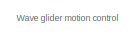
[diagram: root canvas - part 1/5, top center region]
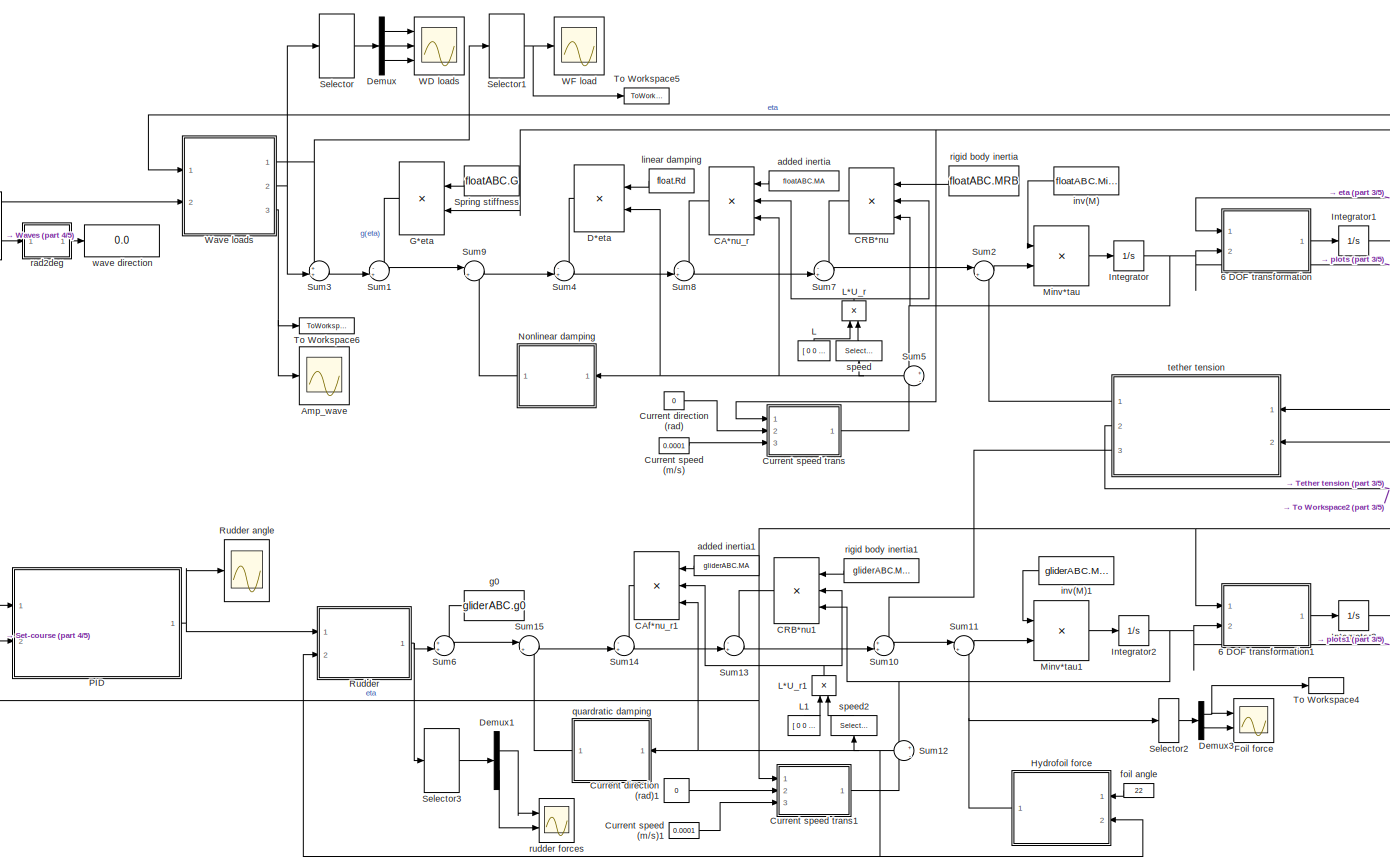
[diagram: root canvas - part 2/5, center side, full height]
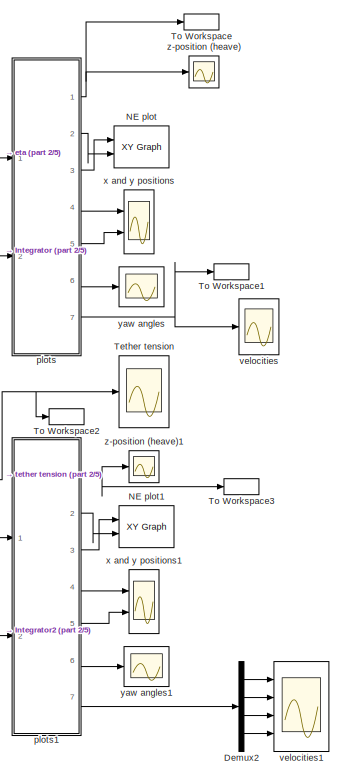
[diagram: root canvas - part 3/5, right side, full height]
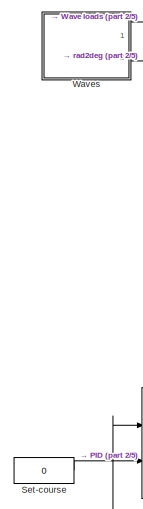
[diagram: root canvas - part 4/5, middle left region]
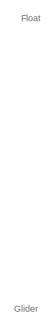
[diagram: root canvas - part 5/5, middle left region]
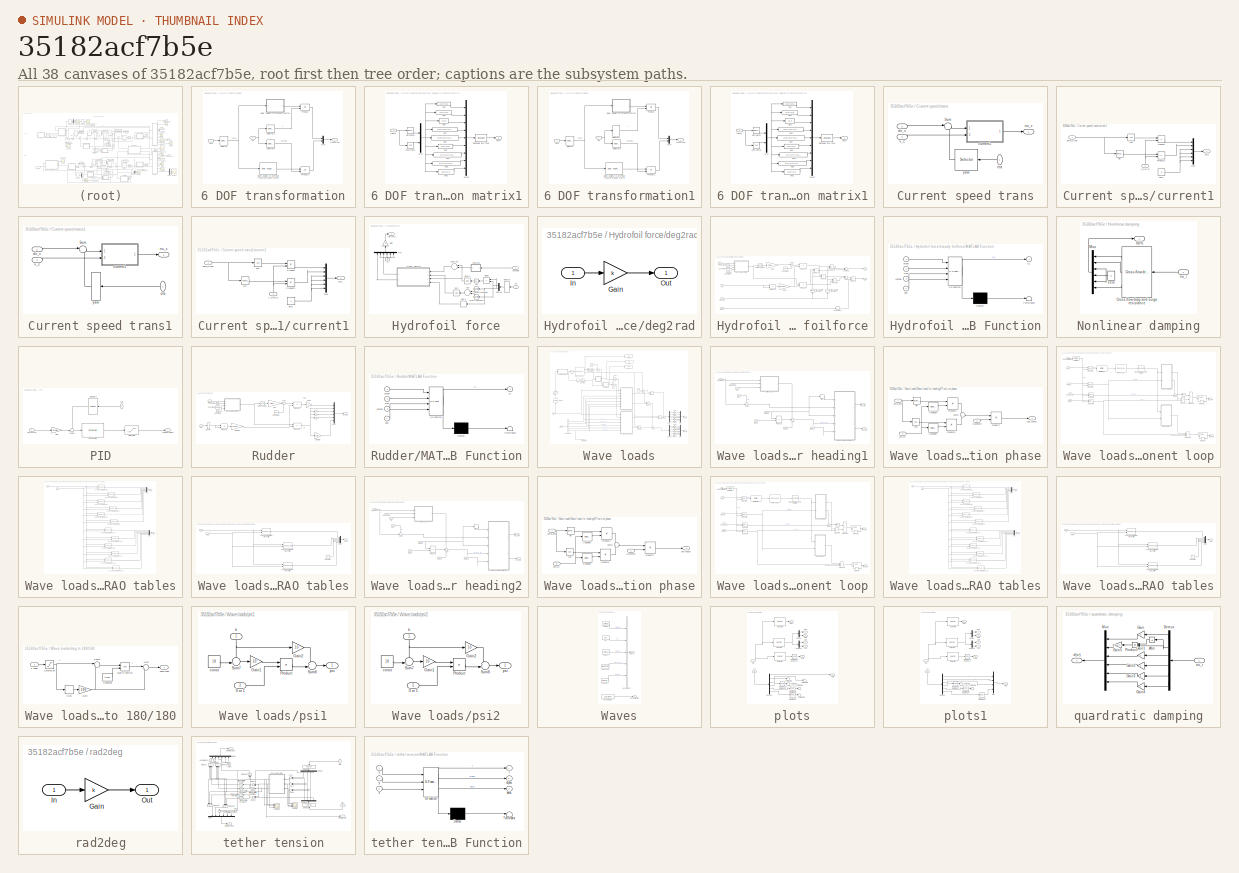
[diagram: thumbnail index - all 38 canvases of the model, root first then tree order]
MODEL slx_35182acf7b5e
KIND model
CONFIG AbsTol = auto
CONFIG FixedStep = 0.001
CONFIG MaxStep = 0.01
CONFIG MinStep = auto
CONFIG RelTol = 1e-6
CONFIG SampleTimeConstraint = Unconstrained
CONFIG Solver = ode4
CONFIG SolverMode = Auto
CONFIG SolverName = ode4
CONFIG StartTime = 0.0
CONFIG StopTime = 100
BLOCK [Scope]  yaw angles
  Ports = [1]
  ScopeSpecificationString = Simulink.scopes.TimeScopeBlockCfg('CurrentConfiguration', extmgr.ConfigurationSet(extmgr.Configuration('Core','General UI',true),extmgr.Configuration('Core','Source UI',true),extmgr.Configuration('Sources','WiredSimulink',true,'DataLoggingVariableName','ScopeData1','DataLoggingSaveFormat','StructureWithTime','DataLoggingDecimation','1','DataLoggingDecimateData',true),extmgr.Configuration('Visuals'...<+1544ch>
BLOCK [Scope]  yaw angles1
  Ports = [1]
  ScopeSpecificationString = Simulink.scopes.TimeScopeBlockCfg('CurrentConfiguration', extmgr.ConfigurationSet(extmgr.Configuration('Core','General UI',true),extmgr.Configuration('Core','Source UI',true),extmgr.Configuration('Sources','WiredSimulink',true,'DataLoggingVariableName','ScopeData1','DataLoggingSaveFormat','Array','DataLoggingDecimation','1','DataLoggingDecimateData',true),extmgr.Configuration('Visuals','Time Domai...<+2010ch>
BLOCK [SubSystem] 6 DOF transformation
  AncestorBlock = marine_gnc/Models/ Kinematics/6 DOF transformation
  Ports = [2, 1]
  RequestExecContextInheritance = off
  Variant = off
BLOCK [Reference] 6 DOF transformation/Euler angles to attitude transformation matrix  REF=marine_gnc/Models/ Kinematics/Euler angles to attitude  (lib defined in mdl_10d96c221ba8, mdl_45f1105420c6)
transformation matrix
  Ports = [1, 1]
  SourceBlock = marine_gnc/Models/ Kinematics/Euler angles to attitude\ntransformation matrix
  SourceType = Euler2T
BLOCK [SubSystem] 6 DOF transformation/Euler angles to rotation matrix1
  AncestorBlock = marine_gnc/Models/ Kinematics/Euler angles to\nrotation matrix
  Ports = [1, 1]
  RequestExecContextInheritance = off
  ShowPortLabels = none
  Variant = off
BLOCK [Mux] 6 DOF transformation/Euler angles to rotation matrix1/Mux
  DisplayOption = bar
  Inputs = 2
  Ports = [2, 1]
BLOCK [Mux] 6 DOF transformation/Euler angles to rotation matrix1/Mux2
  DisplayOption = bar
  Inputs = 9
  Ports = [9, 1]
BLOCK [Fcn] 6 DOF transformation/Euler angles to rotation matrix1/R11
  Expr = u(6)*u(5)
BLOCK [Fcn] 6 DOF transformation/Euler angles to rotation matrix1/R12
  Expr = u(6)*u(2)*u(1)-u(3)*u(4)
BLOCK [Fcn] 6 DOF transformation/Euler angles to rotation matrix1/R13
  Expr = u(4)*u(2)*u(6)+u(3)*u(1)
BLOCK [Fcn] 6 DOF transformation/Euler angles to rotation matrix1/R21 
  Expr = u(3)*u(5)
BLOCK [Fcn] 6 DOF transformation/Euler angles to rotation matrix1/R22
  Expr = u(3)*u(2)*u(1)+u(6)*u(4)
BLOCK [Fcn] 6 DOF transformation/Euler angles to rotation matrix1/R23
  Expr = u(3)*u(2)*u(4)-u(6)*u(1)
BLOCK [Fcn] 6 DOF transformation/Euler angles to rotation matrix1/R31 
  Expr = -u(2)
BLOCK [Fcn] 6 DOF transformation/Euler angles to rotation matrix1/R32
  Expr = u(5)*u(1)
BLOCK [Fcn] 6 DOF transformation/Euler angles to rotation matrix1/R33
  Expr = u(5)*u(4)
BLOCK [Reshape] 6 DOF transformation/Euler angles to rotation matrix1/Reshape 9x1->3x3
  OutputDimensionality = Customize
  OutputDimensions = [3,3]
  Ports = [1, 1]
BLOCK [Outport] 6 DOF transformation/Euler angles to rotation matrix1/Rzyx
  IconDisplay = Port number
  InitialOutput = 0
BLOCK [Trigonometry] 6 DOF transformation/Euler angles to rotation matrix1/cos(theta)
  Operator = cos
  Ports = [1, 1]
BLOCK [Trigonometry] 6 DOF transformation/Euler angles to rotation matrix1/sin(theta)
  Ports = [1, 1]
BLOCK [Inport] 6 DOF transformation/Euler angles to rotation matrix1/theta
  IconDisplay = Port number
BLOCK [Outport] 6 DOF transformation/J(eta)*nu
  IconDisplay = Port number
BLOCK [Mux] 6 DOF transformation/Mux
  DisplayOption = bar
  Inputs = 2
  Ports = [2, 1]
BLOCK [Product] 6 DOF transformation/Product
  InputSameDT = off
  Inputs = **
  Multiplication = Matrix(*)
  Ports = [2, 1]
  RndMeth = Floor
BLOCK [Product] 6 DOF transformation/Product1
  InputSameDT = off
  Inputs = **
  Multiplication = Matrix(*)
  Ports = [2, 1]
  RndMeth = Floor
BLOCK [Selector] 6 DOF transformation/Selector
  IndexOptions = Index vector (dialog)
  Indices = [4 5 6]
  InputPortWidth = 6
  OutputSizes = 1
  Ports = [1, 1]
BLOCK [Selector] 6 DOF transformation/Selector1
  IndexOptions = Index vector (dialog)
  Indices = [1 2 3]
  InputPortWidth = 6
  OutputSizes = 1
  Ports = [1, 1]
BLOCK [Selector] 6 DOF transformation/Selector2
  IndexOptions = Index vector (dialog)
  Indices = [4 5 6]
  InputPortWidth = 6
  OutputSizes = 1
  Ports = [1, 1]
BLOCK [Inport] 6 DOF transformation/eta
  IconDisplay = Port number
BLOCK [Inport] 6 DOF transformation/nu
  IconDisplay = Port number
  Port = 2
BLOCK [SubSystem] 6 DOF transformation1
  AncestorBlock = marine_gnc/Models/ Kinematics/6 DOF transformation
  Ports = [2, 1]
  RequestExecContextInheritance = off
  Variant = off
BLOCK [Reference] 6 DOF transformation1/Euler angles to attitude transformation matrix  REF=marine_gnc/Models/ Kinematics/Euler angles to attitude  (lib defined in mdl_10d96c221ba8, mdl_45f1105420c6)
transformation matrix
  Ports = [1, 1]
  SourceBlock = marine_gnc/Models/ Kinematics/Euler angles to attitude\ntransformation matrix
  SourceType = Euler2T
BLOCK [SubSystem] 6 DOF transformation1/Euler angles to rotation matrix1
  AncestorBlock = marine_gnc/Models/ Kinematics/Euler angles to\nrotation matrix
  Ports = [1, 1]
  RequestExecContextInheritance = off
  ShowPortLabels = none
  Variant = off
BLOCK [Mux] 6 DOF transformation1/Euler angles to rotation matrix1/Mux
  DisplayOption = bar
  Inputs = 2
  Ports = [2, 1]
BLOCK [Mux] 6 DOF transformation1/Euler angles to rotation matrix1/Mux2
  DisplayOption = bar
  Inputs = 9
  Ports = [9, 1]
BLOCK [Fcn] 6 DOF transformation1/Euler angles to rotation matrix1/R11
  Expr = u(6)*u(5)
BLOCK [Fcn] 6 DOF transformation1/Euler angles to rotation matrix1/R12
  Expr = u(6)*u(2)*u(1)-u(3)*u(4)
BLOCK [Fcn] 6 DOF transformation1/Euler angles to rotation matrix1/R13
  Expr = u(4)*u(2)*u(6)+u(3)*u(1)
BLOCK [Fcn] 6 DOF transformation1/Euler angles to rotation matrix1/R21 
  Expr = u(3)*u(5)
BLOCK [Fcn] 6 DOF transformation1/Euler angles to rotation matrix1/R22
  Expr = u(3)*u(2)*u(1)+u(6)*u(4)
BLOCK [Fcn] 6 DOF transformation1/Euler angles to rotation matrix1/R23
  Expr = u(3)*u(2)*u(4)-u(6)*u(1)
BLOCK [Fcn] 6 DOF transformation1/Euler angles to rotation matrix1/R31 
  Expr = -u(2)
BLOCK [Fcn] 6 DOF transformation1/Euler angles to rotation matrix1/R32
  Expr = u(5)*u(1)
BLOCK [Fcn] 6 DOF transformation1/Euler angles to rotation matrix1/R33
  Expr = u(5)*u(4)
BLOCK [Reshape] 6 DOF transformation1/Euler angles to rotation matrix1/Reshape 9x1->3x3
  OutputDimensionality = Customize
  OutputDimensions = [3,3]
  Ports = [1, 1]
BLOCK [Outport] 6 DOF transformation1/Euler angles to rotation matrix1/Rzyx
  IconDisplay = Port number
  InitialOutput = 0
BLOCK [Trigonometry] 6 DOF transformation1/Euler angles to rotation matrix1/cos(theta)
  Operator = cos
  Ports = [1, 1]
BLOCK [Trigonometry] 6 DOF transformation1/Euler angles to rotation matrix1/sin(theta)
  Ports = [1, 1]
BLOCK [Inport] 6 DOF transformation1/Euler angles to rotation matrix1/theta
  IconDisplay = Port number
BLOCK [Outport] 6 DOF transformation1/J(eta)*nu
  IconDisplay = Port number
BLOCK [Mux] 6 DOF transformation1/Mux
  DisplayOption = bar
  Inputs = 2
  Ports = [2, 1]
BLOCK [Product] 6 DOF transformation1/Product
  InputSameDT = off
  Inputs = **
  Multiplication = Matrix(*)
  Ports = [2, 1]
  RndMeth = Floor
BLOCK [Product] 6 DOF transformation1/Product1
  InputSameDT = off
  Inputs = **
  Multiplication = Matrix(*)
  Ports = [2, 1]
  RndMeth = Floor
BLOCK [Selector] 6 DOF transformation1/Selector
  IndexOptions = Index vector (dialog)
  Indices = [4 5 6]
  InputPortWidth = 6
  OutputSizes = 1
  Ports = [1, 1]
BLOCK [Selector] 6 DOF transformation1/Selector1
  IndexOptions = Index vector (dialog)
  Indices = [1 2 3]
  InputPortWidth = 6
  OutputSizes = 1
  Ports = [1, 1]
BLOCK [Selector] 6 DOF transformation1/Selector2
  IndexOptions = Index vector (dialog)
  Indices = [4 5 6]
  InputPortWidth = 6
  OutputSizes = 1
  Ports = [1, 1]
BLOCK [Inport] 6 DOF transformation1/eta
  IconDisplay = Port number
BLOCK [Inport] 6 DOF transformation1/nu
  IconDisplay = Port number
  Port = 2
BLOCK [Scope] Amp_wave
  Ports = [1]
  ScopeSpecificationString = Simulink.scopes.TimeScopeBlockCfg('CurrentConfiguration', extmgr.ConfigurationSet(extmgr.Configuration('Core','General UI',true),extmgr.Configuration('Core','Source UI',true),extmgr.Configuration('Sources','WiredSimulink',true,'DataLoggingVariableName','ScopeData1','DataLoggingLimitDataPoints',true,'DataLoggingSaveFormat','Array','DataLoggingDecimation','1','DataLoggingDecimateData',true),extmgr.C...<+1512ch>
BLOCK [Product] CA*nu_r
  InputSameDT = off
  Inputs = 3
  Multiplication = Matrix(*)
  OutDataTypeStr = Inherit: Inherit via internal rule
  Ports = [3, 1]
  SaturateOnIntegerOverflow = off
BLOCK [Product] CAf*nu_r1
  InputSameDT = off
  Inputs = 3
  Multiplication = Matrix(*)
  OutDataTypeStr = Inherit: Inherit via internal rule
  Ports = [3, 1]
  SaturateOnIntegerOverflow = off
BLOCK [Product] CRB*nu
  InputSameDT = off
  Inputs = 3
  Multiplication = Matrix(*)
  OutDataTypeStr = Inherit: Inherit via internal rule
  Ports = [3, 1]
  SaturateOnIntegerOverflow = off
BLOCK [Product] CRB*nu1
  InputSameDT = off
  Inputs = 3
  Multiplication = Matrix(*)
  OutDataTypeStr = Inherit: Inherit via internal rule
  Ports = [3, 1]
  SaturateOnIntegerOverflow = off
BLOCK [Constant] Current direction (rad)
  Value = 0
BLOCK [Constant] Current direction (rad)1
  Value = 0
BLOCK [Constant] Current speed (m//s)
  Value = 0.0001
BLOCK [Constant] Current speed (m//s)1
  Value = 0.0001
BLOCK [SubSystem] Current speed trans
  Ports = [3, 1]
  RequestExecContextInheritance = off
  Variant = off
BLOCK [Sum] Current speed trans/Sum
  IconShape = round
  InputSameDT = off
  Inputs = |+-
  OutDataTypeStr = Inherit: Inherit via internal rule
  Ports = [2, 1]
  SaturateOnIntegerOverflow = off
BLOCK [SubSystem] Current speed trans/current1
  Ports = [2, 1]
  RequestExecContextInheritance = off
  Variant = off
BLOCK [Mux] Current speed trans/current1/Mux
  DisplayOption = bar
  Inputs = 6
  Ports = [6, 1]
BLOCK [Product] Current speed trans/current1/Product
  InputSameDT = off
  OutDataTypeStr = Inherit: Inherit via internal rule
  Ports = [2, 1]
  SaturateOnIntegerOverflow = off
BLOCK [Product] Current speed trans/current1/Product1
  InputSameDT = off
  OutDataTypeStr = Inherit: Inherit via internal rule
  Ports = [2, 1]
  SaturateOnIntegerOverflow = off
BLOCK [Inport] Current speed trans/current1/V_c(m//s)
  IconDisplay = Port number
  Port = 2
BLOCK [Inport] Current speed trans/current1/beta_c(rad)
  IconDisplay = Port number
BLOCK [Trigonometry] Current speed trans/current1/cos
  Operator = cos
  Ports = [1, 1]
BLOCK [Outport] Current speed trans/current1/nu_c
  IconDisplay = Port number
BLOCK [Trigonometry] Current speed trans/current1/sin
  Ports = [1, 1]
BLOCK [Constant] Current speed trans/current1/zero
  Value = 0
BLOCK [Inport] Current speed trans/dir_c
  IconDisplay = Port number
  Port = 2
BLOCK [Inport] Current speed trans/eta
  IconDisplay = Port number
BLOCK [Outport] Current speed trans/nu_c
  IconDisplay = Port number
BLOCK [Inport] Current speed trans/v_c
  IconDisplay = Port number
  Port = 3
BLOCK [Selector] Current speed trans/yaw
  IndexOptions = Index vector (dialog)
  Indices = [6]
  InputPortWidth = 6
  OutputSizes = 1
  Ports = [1, 1]
BLOCK [SubSystem] Current speed trans1
  Ports = [3, 1]
  RequestExecContextInheritance = off
  Variant = off
BLOCK [Sum] Current speed trans1/Sum
  IconShape = round
  InputSameDT = off
  Inputs = |+-
  OutDataTypeStr = Inherit: Inherit via internal rule
  Ports = [2, 1]
  SaturateOnIntegerOverflow = off
BLOCK [SubSystem] Current speed trans1/current1
  Ports = [2, 1]
  RequestExecContextInheritance = off
  Variant = off
BLOCK [Mux] Current speed trans1/current1/Mux
  DisplayOption = bar
  Inputs = 6
  Ports = [6, 1]
BLOCK [Product] Current speed trans1/current1/Product
  InputSameDT = off
  OutDataTypeStr = Inherit: Inherit via internal rule
  Ports = [2, 1]
  SaturateOnIntegerOverflow = off
BLOCK [Product] Current speed trans1/current1/Product1
  InputSameDT = off
  OutDataTypeStr = Inherit: Inherit via internal rule
  Ports = [2, 1]
  SaturateOnIntegerOverflow = off
BLOCK [Inport] Current speed trans1/current1/V_c(m//s)
  IconDisplay = Port number
  Port = 2
BLOCK [Inport] Current speed trans1/current1/beta_c(rad)
  IconDisplay = Port number
BLOCK [Trigonometry] Current speed trans1/current1/cos
  Operator = cos
  Ports = [1, 1]
BLOCK [Outport] Current speed trans1/current1/nu_c
  IconDisplay = Port number
BLOCK [Trigonometry] Current speed trans1/current1/sin
  Ports = [1, 1]
BLOCK [Constant] Current speed trans1/current1/zero
  Value = 0
BLOCK [Inport] Current speed trans1/dir_c
  IconDisplay = Port number
  Port = 2
BLOCK [Inport] Current speed trans1/eta
  IconDisplay = Port number
BLOCK [Outport] Current speed trans1/nu_c
  IconDisplay = Port number
BLOCK [Inport] Current speed trans1/v_c
  IconDisplay = Port number
  Port = 3
BLOCK [Selector] Current speed trans1/yaw
  IndexOptions = Index vector (dialog)
  Indices = [6]
  InputPortWidth = 6
  OutputSizes = 1
  Ports = [1, 1]
BLOCK [Product] D*eta 
  InputSameDT = off
  Multiplication = Matrix(*)
  Ports = [2, 1]
  RndMeth = Floor
BLOCK [Demux] Demux
  DisplayOption = bar
  Outputs = 3
  Ports = [1, 3]
BLOCK [Demux] Demux1
  DisplayOption = bar
  Outputs = 2
  Ports = [1, 2]
BLOCK [Demux] Demux2
  Ports = [1, 4]
BLOCK [Demux] Demux3
  DisplayOption = bar
  Outputs = 2
  Ports = [1, 2]
BLOCK [Scope] Foil force
  NumInputPorts = 2
  Ports = [2]
  ScopeSpecificationString = Simulink.scopes.TimeScopeBlockCfg('CurrentConfiguration', extmgr.ConfigurationSet(extmgr.Configuration('Core','General UI',true),extmgr.Configuration('Core','Source UI',true),extmgr.Configuration('Sources','WiredSimulink',true,'DataLoggingVariableName','ScopeData1','DataLoggingDecimateData',true,'DataLoggingDecimation','1'),extmgr.Configuration('Visuals','Time Domain',true,'SerializedDisplays',{st...<+2055ch>
BLOCK [Product] G*eta
  InputSameDT = off
  Multiplication = Matrix(*)
  Ports = [2, 1]
  RndMeth = Floor
BLOCK [SubSystem] Hydrofoil force
  Ports = [2, 1]
  RequestExecContextInheritance = off
  Variant = off
BLOCK [Constant] Hydrofoil force/0
  Value = 0
BLOCK [Abs] Hydrofoil force/Abs
  SaturateOnIntegerOverflow = off
BLOCK [Sum] Hydrofoil force/Add
  InputSameDT = off
  OutDataTypeStr = Inherit: Inherit via internal rule
  Ports = [2, 1]
  SaturateOnIntegerOverflow = off
BLOCK [Demux] Hydrofoil force/Demux
  DisplayOption = bar
  Outputs = 2
  Ports = [1, 2]
BLOCK [Product] Hydrofoil force/Divide
  InputSameDT = off
  Inputs = */
  OutDataTypeStr = Inherit: Inherit via internal rule
  Ports = [2, 1]
  RndMeth = Floor
  SaturateOnIntegerOverflow = off
BLOCK [Gain] Hydrofoil force/Gain
  Gain = 12
  OutDataTypeStr = Inherit: Inherit via internal rule
  ParamDataTypeStr = Inherit: Inherit via internal rule
  SaturateOnIntegerOverflow = off
BLOCK [Math] Hydrofoil force/Math Function
  Operator = magnitude^2
  Ports = [1, 1]
BLOCK [Math] Hydrofoil force/Math Function1
  Operator = magnitude^2
  Ports = [1, 1]
BLOCK [Mux] Hydrofoil force/Mux
  DisplayOption = bar
  Inputs = 6
  Ports = [6, 1]
BLOCK [Selector] Hydrofoil force/Selector
  IndexOptions = Index vector (dialog)
  Indices = [1 3]
  InputPortWidth = 6
  OutputSizes = 1
  Ports = [1, 1]
BLOCK [Signum] Hydrofoil force/Sign_z
BLOCK [Sqrt] Hydrofoil force/Sqrt
BLOCK [Sum] Hydrofoil force/Subtract
  InputSameDT = off
  Inputs = +-
  OutDataTypeStr = Inherit: Inherit via internal rule
  Ports = [2, 1]
  SaturateOnIntegerOverflow = off
BLOCK [Trigonometry] Hydrofoil force/alpha_f
  Operator = atan
  Ports = [1, 1]
BLOCK [SubSystem] Hydrofoil force/deg2rad
  AncestorBlock = marine_gnc/Utilities/Math Operations/Unit Conversion
  Ports = [1, 1]
  RequestExecContextInheritance = off
  Variant = off
BLOCK [Gain] Hydrofoil force/deg2rad/Gain
  Gain = k
BLOCK [Inport] Hydrofoil force/deg2rad/In
  IconDisplay = Port number
BLOCK [Outport] Hydrofoil force/deg2rad/Out
  IconDisplay = Port number
BLOCK [Inport] Hydrofoil force/foil angle
  IconDisplay = Port number
BLOCK [Outport] Hydrofoil force/foil force
  IconDisplay = Port number
BLOCK [Inport] Hydrofoil force/nu
  IconDisplay = Port number
  Port = 2
BLOCK [SubSystem] Hydrofoil force/steady foilforce
  Ports = [4, 2]
  RequestExecContextInheritance = off
  Variant = off
BLOCK [Sum] Hydrofoil force/steady foilforce/Add1
  InputSameDT = off
  OutDataTypeStr = Inherit: Inherit via internal rule
  Ports = [2, 1]
  SaturateOnIntegerOverflow = off
BLOCK [Constant] Hydrofoil force/steady foilforce/Constant1
  Value = CD0
BLOCK [Constant] Hydrofoil force/steady foilforce/Constant2
  Value = Cdc
BLOCK [Constant] Hydrofoil force/steady foilforce/Constant3
  Value = lamda
BLOCK [Constant] Hydrofoil force/steady foilforce/Constant4
  Value = eks
BLOCK [Outport] Hydrofoil force/steady foilforce/Fx
  IconDisplay = Port number
  Port = 2
BLOCK [Outport] Hydrofoil force/steady foilforce/Fz
  IconDisplay = Port number
BLOCK [Gain] Hydrofoil force/steady foilforce/Gain1
  Gain = 0.5*rho*A
BLOCK [SubSystem] Hydrofoil force/steady foilforce/MATLAB Function
  ErrorFcn = Stateflow.Translate.translate
  PermitHierarchicalResolution = ExplicitOnly
  Ports = [4, 1]
  RequestExecContextInheritance = off
  SFBlockType = MATLAB Function
  TreatAsAtomicUnit = on
  Variant = off
BLOCK [Demux] Hydrofoil force/steady foilforce/MATLAB Function/ Demux 
  Outputs = 1
  Ports = [1, 1]
BLOCK [S-Function] Hydrofoil force/steady foilforce/MATLAB Function/ SFunction 
  EnableBusSupport = on
  FunctionName = sf_sfun
  PortCounts = [4 2]
  Ports = [4, 2]
  SFunctionDeploymentMode = off
  Tag = Stateflow S-Function Main_Project 4
BLOCK [Terminator] Hydrofoil force/steady foilforce/MATLAB Function/ Terminator 
BLOCK [Outport] Hydrofoil force/steady foilforce/MATLAB Function/CL
  IconDisplay = Port number
BLOCK [Inport] Hydrofoil force/steady foilforce/MATLAB Function/Cdc
  IconDisplay = Port number
  Port = 2
BLOCK [Inport] Hydrofoil force/steady foilforce/MATLAB Function/alpha
  IconDisplay = Port number
BLOCK [Inport] Hydrofoil force/steady foilforce/MATLAB Function/eks
  IconDisplay = Port number
  Port = 4
BLOCK [Inport] Hydrofoil force/steady foilforce/MATLAB Function/lamda
  IconDisplay = Port number
  Port = 3
BLOCK [Math] Hydrofoil force/steady foilforce/Math Function2
  Operator = square
  Ports = [1, 1]
BLOCK [Product] Hydrofoil force/steady foilforce/Product
  InputSameDT = off
  OutDataTypeStr = Inherit: Inherit via internal rule
  Ports = [2, 1]
  RndMeth = Floor
  SaturateOnIntegerOverflow = off
BLOCK [Product] Hydrofoil force/steady foilforce/Product1
  Inputs = **
  Ports = [2, 1]
  RndMeth = Floor
BLOCK [Product] Hydrofoil force/steady foilforce/Product2
  Ports = [2, 1]
  RndMeth = Floor
BLOCK [Product] Hydrofoil force/steady foilforce/Product3
  InputSameDT = off
  OutDataTypeStr = Inherit: Inherit via internal rule
  Ports = [2, 1]
  RndMeth = Floor
  SaturateOnIntegerOverflow = off
BLOCK [Product] Hydrofoil force/steady foilforce/Product4
  Ports = [2, 1]
  RndMeth = Floor
BLOCK [Product] Hydrofoil force/steady foilforce/Product5
  InputSameDT = off
  OutDataTypeStr = Inherit: Inherit via internal rule
  Ports = [2, 1]
  RndMeth = Floor
  SaturateOnIntegerOverflow = off
BLOCK [Product] Hydrofoil force/steady foilforce/Product6
  InputSameDT = off
  OutDataTypeStr = Inherit: Inherit via internal rule
  Ports = [2, 1]
  RndMeth = Floor
  SaturateOnIntegerOverflow = off
BLOCK [Product] Hydrofoil force/steady foilforce/Product7
  InputSameDT = off
  OutDataTypeStr = Inherit: Inherit via internal rule
  Ports = [2, 1]
  RndMeth = Floor
  SaturateOnIntegerOverflow = off
BLOCK [Sum] Hydrofoil force/steady foilforce/Subtract1
  InputSameDT = off
  Inputs = +-
  OutDataTypeStr = Inherit: Inherit via internal rule
  Ports = [2, 1]
  SaturateOnIntegerOverflow = off
BLOCK [Sum] Hydrofoil force/steady foilforce/Sum1
  IconShape = round
  Inputs = |++
  Ports = [2, 1]
BLOCK [Trigonometry] Hydrofoil force/steady foilforce/Trigonometric Function
  Ports = [1, 1]
BLOCK [Trigonometry] Hydrofoil force/steady foilforce/Trigonometric Function1
  Operator = cos
  Ports = [1, 1]
BLOCK [UnaryMinus] Hydrofoil force/steady foilforce/Unary Minus
BLOCK [Inport] Hydrofoil force/steady foilforce/Vf 
  IconDisplay = Port number
  Port = 2
BLOCK [Inport] Hydrofoil force/steady foilforce/alpha
  IconDisplay = Port number
BLOCK [Inport] Hydrofoil force/steady foilforce/alpha_f1
  IconDisplay = Port number
  Port = 3
BLOCK [Gain] Hydrofoil force/steady foilforce/gain 
  Gain = 1/(0.9*pi*lamda)
BLOCK [Inport] Hydrofoil force/steady foilforce/sign_z
  IconDisplay = Port number
  Port = 4
BLOCK [Integrator] Integrator
  InitialCondition = [0 0 0 0 0 0]
  Ports = [1, 1]
BLOCK [Integrator] Integrator1
  InitialCondition = [0 0 0 0 0 0]
  Ports = [1, 1]
BLOCK [Integrator] Integrator2
  InitialCondition = [0 0 0 0 0 0]
  Ports = [1, 1]
BLOCK [Integrator] Integrator3
  InitialCondition = [0 0 6.2 0 0 0]
  Ports = [1, 1]
BLOCK [Constant] L
  Value = [ 0     0     0     0     0     0;   0     0     0     0     0     1;\n     0     0     0     0    -1     0;	\n     0     0     0     0     0     0	;\n     0     0     0     0     0     0	\n;     0     0     0     0     0     0]
BLOCK [Product] L*U_r
  InputSameDT = off
  OutDataTypeStr = Inherit: Inherit via internal rule
  Ports = [2, 1]
  SaturateOnIntegerOverflow = off
BLOCK [Product] L*U_r1
  InputSameDT = off
  OutDataTypeStr = Inherit: Inherit via internal rule
  Ports = [2, 1]
  SaturateOnIntegerOverflow = off
BLOCK [Constant] L1
  Value = [ 0     0     0     0     0     0;   0     0     0     0     0     1;\n     0     0     0     0    -1     0;	\n     0     0     0     0     0     0	;\n     0     0     0     0     0     0	\n;     0     0     0     0     0     0]
BLOCK [Product] Minv*tau
  InputSameDT = off
  Inputs = **
  Multiplication = Matrix(*)
  Ports = [2, 1]
  RndMeth = Floor
BLOCK [Product] Minv*tau1
  InputSameDT = off
  Inputs = **
  Multiplication = Matrix(*)
  Ports = [2, 1]
  RndMeth = Floor
BLOCK [Reference] NE plot  REF=simulink/Sinks/XY Graph
  Ports = [2]
  SourceBlock = simulink/Sinks/XY Graph
  SourceType = XY scope.
BLOCK [Reference] NE plot1  REF=simulink/Sinks/XY Graph
  Ports = [2]
  SourceBlock = simulink/Sinks/XY Graph
  SourceType = XY scope.
BLOCK [SubSystem] Nonlinear damping
  Ports = [1, 1]
  RequestExecContextInheritance = off
  Variant = off
BLOCK [Reference] Nonlinear damping/Cross-flow drag and surge resistance  REF=marine_hydro/Hydro Library/Cross-flow drag and surge resistance
  Ports = [1, 3]
  SourceBlock = marine_hydro/Hydro Library/Cross-flow drag and surge resistance
  SourceType = Cross-flow drag and surge resistance
BLOCK [Mux] Nonlinear damping/Mux
  DisplayOption = bar
  Inputs = 6
  Ports = [6, 1]
BLOCK [Outport] Nonlinear damping/d(vr)
  IconDisplay = Port number
BLOCK [Inport] Nonlinear damping/nu_r
  IconDisplay = Port number
BLOCK [Constant] Nonlinear damping/zero
  Value = 0
BLOCK [SubSystem] PID
  Ports = [2, 1]
  RequestExecContextInheritance = off
  Variant = off
BLOCK [Gain] PID/Gain
  Gain = pi/180
  OutDataTypeStr = Inherit: Inherit via internal rule
  ParamDataTypeStr = Inherit: Inherit via internal rule
  SaturateOnIntegerOverflow = off
BLOCK [Reference] PID/PID Controller  REF=simulink/Continuous/PID Controller
  Ports = [1, 1]
  SourceBlock = simulink/Continuous/PID Controller
  SourceType = PID 1dof
BLOCK [Outport] PID/Rudder angle1
  IconDisplay = Port number
BLOCK [Saturate] PID/Saturation
  InputPortMap = u0
  LowerLimit = -0.78
  Ports = [1, 1]
  UpperLimit = 0.78
BLOCK [Selector] PID/Selector3
  IndexOptions = Index vector (dialog)
  Indices = [6]
  InputPortWidth = 6
  OutputSizes = 1
  Ports = [1, 1]
BLOCK [Sum] PID/Sum16
  IconShape = round
  InputSameDT = off
  Inputs = +-|
  OutDataTypeStr = Inherit: Inherit via internal rule
  Ports = [2, 1]
BLOCK [Inport] PID/set_course
  IconDisplay = Port number
  Port = 2
BLOCK [Inport] PID/yaw
  IconDisplay = Port number
BLOCK [SubSystem] Rudder
  Ports = [2, 1]
  RequestExecContextInheritance = off
  Variant = off
BLOCK [Scope] Rudder angle
  Ports = [1]
  ScopeSpecificationString = Simulink.scopes.TimeScopeBlockCfg('CurrentConfiguration', extmgr.ConfigurationSet(extmgr.Configuration('Core','General UI',true),extmgr.Configuration('Core','Source UI',true),extmgr.Configuration('Sources','WiredSimulink',true,'DataLoggingVariableName','ScopeData1','DataLoggingSaveFormat','Array','DataLoggingDecimation','1','DataLoggingDecimateData',true),extmgr.Configuration('Visuals','Time Domai...<+1468ch>
BLOCK [Gain] Rudder/0
  Gain = 0
BLOCK [Gain] Rudder/1
  Gain = 0
BLOCK [Gain] Rudder/2
  Gain = 0
BLOCK [Constant] Rudder/Constant1
  Value = CD0
BLOCK [Constant] Rudder/Constant2
  Value = Cdc
BLOCK [Constant] Rudder/Constant3
  Value = lamda
BLOCK [Constant] Rudder/Constant4
  Value = eks
BLOCK [SubSystem] Rudder/MATLAB Function
  ErrorFcn = Stateflow.Translate.translate
  PermitHierarchicalResolution = ExplicitOnly
  Ports = [4, 1]
  RequestExecContextInheritance = off
  SFBlockType = MATLAB Function
  TreatAsAtomicUnit = on
  Variant = off
BLOCK [Demux] Rudder/MATLAB Function/ Demux 
  Outputs = 1
  Ports = [1, 1]
BLOCK [S-Function] Rudder/MATLAB Function/ SFunction 
  EnableBusSupport = on
  FunctionName = sf_sfun
  PortCounts = [4 2]
  Ports = [4, 2]
  SFunctionDeploymentMode = off
  Tag = Stateflow S-Function Main_Project 1
BLOCK [Terminator] Rudder/MATLAB Function/ Terminator 
BLOCK [Inport] Rudder/MATLAB Function/Cdc
  IconDisplay = Port number
  Port = 2
BLOCK [Outport] Rudder/MATLAB Function/Cl
  IconDisplay = Port number
BLOCK [Inport] Rudder/MATLAB Function/alpha
  IconDisplay = Port number
BLOCK [Inport] Rudder/MATLAB Function/eks
  IconDisplay = Port number
  Port = 4
BLOCK [Inport] Rudder/MATLAB Function/lamda
  IconDisplay = Port number
  Port = 3
BLOCK [Math] Rudder/Math Function
  Operator = square
  Ports = [1, 1]
BLOCK [Mux] Rudder/Mux2
  DisplayOption = bar
  Inputs = 6
  Ports = [6, 1]
BLOCK [Product] Rudder/Product1
  Inputs = **
  Ports = [2, 1]
  RndMeth = Floor
BLOCK [Product] Rudder/Product2
  Ports = [2, 1]
  RndMeth = Floor
BLOCK [Product] Rudder/Product4
  Ports = [2, 1]
  RndMeth = Floor
BLOCK [Selector] Rudder/Selector
  IndexOptions = Index vector (dialog)
  Indices = [1]
  InputPortWidth = 6
  OutputSizes = 1
  Ports = [1, 1]
BLOCK [Sum] Rudder/Sum1
  IconShape = round
  Inputs = |++
  Ports = [2, 1]
BLOCK [Inport] Rudder/Vrel
  IconDisplay = Port number
  Port = 2
BLOCK [Outport] Rudder/[XYZN]'
  IconDisplay = Port number
BLOCK [Inport] Rudder/alpha 
  IconDisplay = Port number
BLOCK [Gain] Rudder/gain 
  Gain = 1/(0.9*pi*lamda)
BLOCK [Gain] Rudder/gain 2
  Gain = -1
BLOCK [Gain] Rudder/pi//(2*stall)2
  Gain = 0.5*rho*A
BLOCK [Gain] Rudder/pi//(2*stall)7
  Gain = -LCG
BLOCK [Selector] Selector
  IndexOptions = Index vector (dialog)
  Indices = [1 2 6]
  InputPortWidth = 6
  OutputSizes = 1
  Ports = [1, 1]
BLOCK [Selector] Selector1
  IndexOptions = Index vector (dialog)
  Indices = [3]
  InputPortWidth = 6
  OutputSizes = 1
  Ports = [1, 1]
BLOCK [Selector] Selector2
  IndexOptions = Index vector (dialog)
  Indices = [1 3]
  InputPortWidth = 6
  OutputSizes = 1
  Ports = [1, 1]
BLOCK [Selector] Selector3
  IndexOptions = Index vector (dialog)
  Indices = [1 2]
  InputPortWidth = 6
  OutputSizes = 1
  Ports = [1, 1]
BLOCK [Constant] Set-course
  Value = 0
BLOCK [Constant] Spring stiffness
  Value = floatABC.G
BLOCK [Sum] Sum1
  IconShape = round
  InputSameDT = off
  Inputs = -+|
  OutDataTypeStr = Inherit: Inherit via internal rule
  Ports = [2, 1]
BLOCK [Sum] Sum10
  IconShape = round
  InputSameDT = off
  Inputs = ++|
  OutDataTypeStr = Inherit: Inherit via internal rule
  Ports = [2, 1]
BLOCK [Sum] Sum11
  IconShape = round
  InputSameDT = off
  Inputs = |++
  OutDataTypeStr = Inherit: Inherit via internal rule
  Ports = [2, 1]
BLOCK [Sum] Sum12
  IconShape = round
  InputSameDT = off
  Inputs = +|-
  OutDataTypeStr = Inherit: Inherit via internal rule
  Ports = [2, 1]
BLOCK [Sum] Sum13
  IconShape = round
  InputSameDT = off
  Inputs = -+|
  OutDataTypeStr = Inherit: Inherit via internal rule
  Ports = [2, 1]
BLOCK [Sum] Sum14
  IconShape = round
  InputSameDT = off
  Inputs = -+|
  OutDataTypeStr = Inherit: Inherit via internal rule
  Ports = [2, 1]
BLOCK [Sum] Sum15
  IconShape = round
  InputSameDT = off
  Inputs = |+-
  OutDataTypeStr = Inherit: Inherit via internal rule
  Ports = [2, 1]
BLOCK [Sum] Sum2
  IconShape = round
  InputSameDT = off
  Inputs = |++
  OutDataTypeStr = Inherit: Inherit via internal rule
  Ports = [2, 1]
BLOCK [Sum] Sum3
  IconShape = round
  InputSameDT = off
  Inputs = ++|
  OutDataTypeStr = Inherit: Inherit via internal rule
  Ports = [2, 1]
BLOCK [Sum] Sum4
  IconShape = round
  InputSameDT = off
  Inputs = -+|
  OutDataTypeStr = Inherit: Inherit via internal rule
  Ports = [2, 1]
BLOCK [Sum] Sum5
  IconShape = round
  InputSameDT = off
  Inputs = +|-
  OutDataTypeStr = Inherit: Inherit via internal rule
  Ports = [2, 1]
BLOCK [Sum] Sum6
  IconShape = round
  InputSameDT = off
  Inputs = ++|
  OutDataTypeStr = Inherit: Inherit via internal rule
  Ports = [2, 1]
BLOCK [Sum] Sum7
  IconShape = round
  InputSameDT = off
  Inputs = -+|
  OutDataTypeStr = Inherit: Inherit via internal rule
  Ports = [2, 1]
BLOCK [Sum] Sum8
  IconShape = round
  InputSameDT = off
  Inputs = -+|
  OutDataTypeStr = Inherit: Inherit via internal rule
  Ports = [2, 1]
BLOCK [Sum] Sum9
  IconShape = round
  InputSameDT = off
  Inputs = |++
  OutDataTypeStr = Inherit: Inherit via internal rule
  Ports = [2, 1]
BLOCK [Scope] Tether tension
  Ports = [1]
  ScopeSpecificationString = Simulink.scopes.TimeScopeBlockCfg('CurrentConfiguration', extmgr.ConfigurationSet(extmgr.Configuration('Core','General UI',true),extmgr.Configuration('Core','Source UI',true),extmgr.Configuration('Sources','WiredSimulink',true,'DataLoggingVariableName','ScopeData1','DataLoggingSaveFormat','Array','DataLoggingDecimation','1','DataLoggingDecimateData',true),extmgr.Configuration('Visuals','Time Domai...<+1508ch>
BLOCK [ToWorkspace] To Workspace
  FixptAsFi = on
  MaxDataPoints = inf
  Ports = [1]
  SampleTime = -1
  Save2DSignal = 3-D array (concatenate along third dimension)
  SaveFormat = Timeseries
  VariableName = z_float
BLOCK [ToWorkspace] To Workspace1
  FixptAsFi = on
  MaxDataPoints = inf
  Ports = [1]
  SampleTime = -1
  Save2DSignal = 3-D array (concatenate along third dimension)
  SaveFormat = Timeseries
  VariableName = u
BLOCK [ToWorkspace] To Workspace2
  FixptAsFi = on
  MaxDataPoints = inf
  Ports = [1]
  SampleTime = -1
  Save2DSignal = 3-D array (concatenate along third dimension)
  SaveFormat = Timeseries
  VariableName = T
BLOCK [ToWorkspace] To Workspace3
  FixptAsFi = on
  MaxDataPoints = inf
  Ports = [1]
  SampleTime = -1
  Save2DSignal = 3-D array (concatenate along third dimension)
  SaveFormat = Timeseries
  VariableName = z_glider
BLOCK [ToWorkspace] To Workspace4
  FixptAsFi = on
  MaxDataPoints = inf
  Ports = [1]
  SampleTime = -1
  Save2DSignal = 3-D array (concatenate along third dimension)
  SaveFormat = Timeseries
  VariableName = FL
BLOCK [ToWorkspace] To Workspace5
  FixptAsFi = on
  MaxDataPoints = inf
  Ports = [1]
  SampleTime = -1
  Save2DSignal = 3-D array (concatenate along third dimension)
  SaveFormat = Timeseries
  VariableName = WF_load
BLOCK [ToWorkspace] To Workspace6
  FixptAsFi = on
  MaxDataPoints = inf
  Ports = [1]
  SampleTime = -1
  Save2DSignal = 3-D array (concatenate along third dimension)
  SaveFormat = Timeseries
  VariableName = Amp_wave
BLOCK [Scope] WD loads
  NumInputPorts = 3
  Ports = [3]
  ScopeSpecificationString = Simulink.scopes.TimeScopeBlockCfg('CurrentConfiguration', extmgr.ConfigurationSet(extmgr.Configuration('Core','General UI',true),extmgr.Configuration('Core','Source UI',true),extmgr.Configuration('Sources','WiredSimulink',true,'DataLoggingVariableName','ScopeData8','DataLoggingSaveFormat','Array','DataLoggingDecimation','1','DataLoggingDecimateData',true),extmgr.Configuration('Visuals','Time Domai...<+2835ch>
BLOCK [Scope] WF load
  Ports = [1]
  ScopeSpecificationString = Simulink.scopes.TimeScopeBlockCfg('CurrentConfiguration', extmgr.ConfigurationSet(extmgr.Configuration('Core','General UI',true),extmgr.Configuration('Core','Source UI',true),extmgr.Configuration('Sources','WiredSimulink',true,'DataLoggingVariableName','ScopeData9','DataLoggingSaveFormat','Array','DataLoggingDecimation','1','DataLoggingDecimateData',true),extmgr.Configuration('Visuals','Time Domai...<+1512ch>
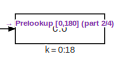
[diagram: Wave loads - part 1/4, top center region]
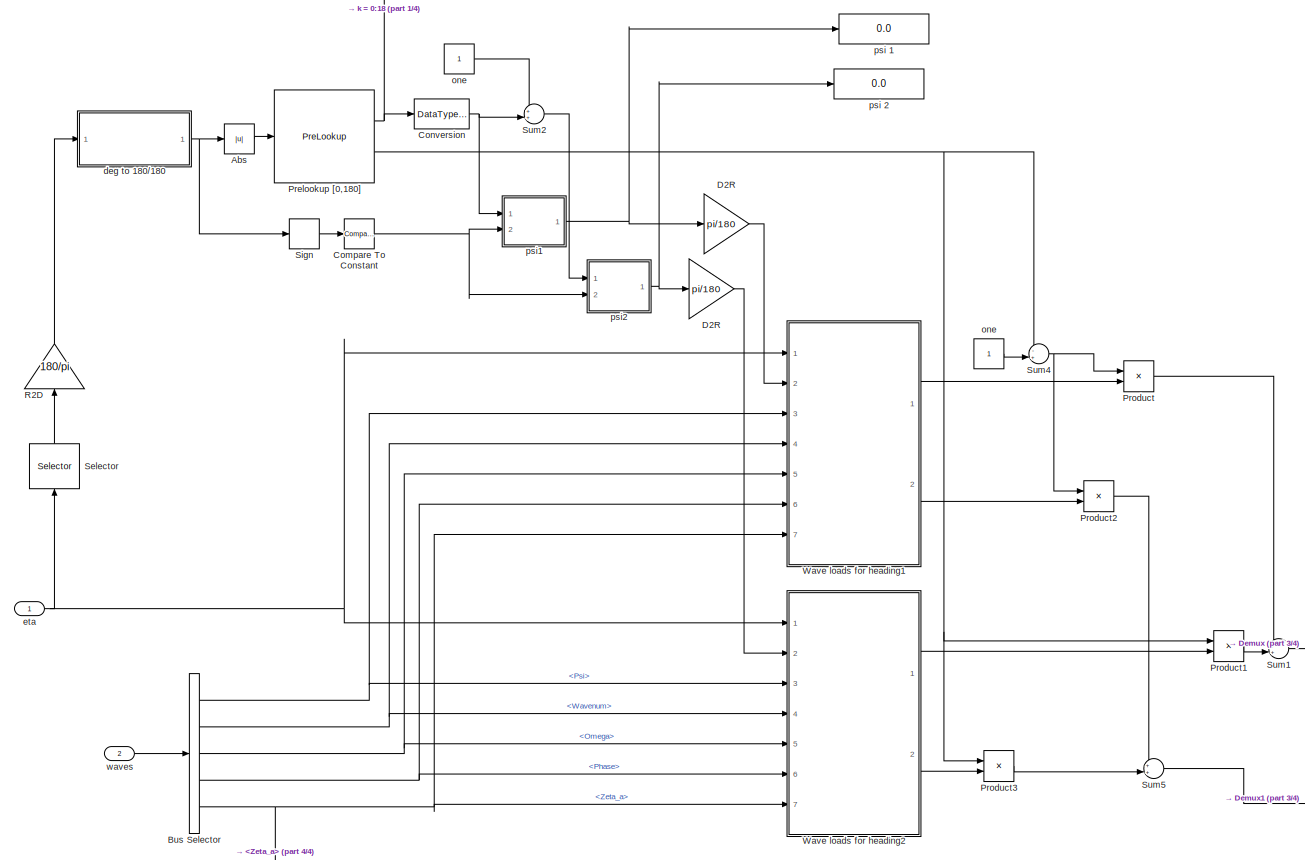
[diagram: Wave loads - part 2/4, most of the canvas]
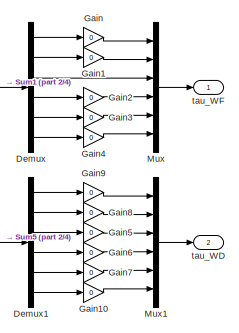
[diagram: Wave loads - part 3/4, bottom right region]
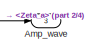
[diagram: Wave loads - part 4/4, bottom left region]
BLOCK [SubSystem] Wave loads
  Ports = [2, 3]
  RequestExecContextInheritance = off
  Variant = off
BLOCK [Abs] Wave loads/Abs
BLOCK [Outport] Wave loads/Amp_wave
  IconDisplay = Port number
  Port = 3
BLOCK [BusSelector] Wave loads/Bus Selector
  OutputSignals = Psi,Wavenum,Omega,Phase,Zeta_a
  Ports = [1, 5]
BLOCK [Reference] Wave loads/Compare To Constant  REF=simulink/Logic and Bit
Operations/Compare
To Constant
  Ports = [1, 1]
  SourceBlock = simulink/Logic and Bit\nOperations/Compare\nTo Constant
  SourceType = Compare To Constant
BLOCK [DataTypeConversion] Wave loads/Conversion
  OutDataTypeStr = double
  RndMeth = Floor
  SaturateOnIntegerOverflow = off
BLOCK [Gain] Wave loads/D2R
  Gain = pi/180
  OutDataTypeStr = Inherit: Inherit via internal rule
  ParamDataTypeStr = Inherit: Inherit via internal rule
  SaturateOnIntegerOverflow = off
BLOCK [Gain] Wave loads/D2R 
  Gain = pi/180
  OutDataTypeStr = Inherit: Inherit via internal rule
  ParamDataTypeStr = Inherit: Inherit via internal rule
  SaturateOnIntegerOverflow = off
BLOCK [Demux] Wave loads/Demux
  DisplayOption = bar
  Outputs = 6
  Ports = [1, 6]
BLOCK [Demux] Wave loads/Demux1
  DisplayOption = bar
  Outputs = 6
  Ports = [1, 6]
BLOCK [Gain] Wave loads/Gain
  Gain = 0
  OutDataTypeStr = Inherit: Inherit via internal rule
  ParamDataTypeStr = Inherit: Inherit via internal rule
  SaturateOnIntegerOverflow = off
BLOCK [Gain] Wave loads/Gain1
  Gain = 0
  OutDataTypeStr = Inherit: Inherit via internal rule
  ParamDataTypeStr = Inherit: Inherit via internal rule
  SaturateOnIntegerOverflow = off
BLOCK [Gain] Wave loads/Gain10
  Gain = 0
  OutDataTypeStr = Inherit: Inherit via internal rule
  ParamDataTypeStr = Inherit: Inherit via internal rule
  SaturateOnIntegerOverflow = off
BLOCK [Gain] Wave loads/Gain2
  Gain = 0
  OutDataTypeStr = Inherit: Inherit via internal rule
  ParamDataTypeStr = Inherit: Inherit via internal rule
  SaturateOnIntegerOverflow = off
BLOCK [Gain] Wave loads/Gain3
  Gain = 0
  OutDataTypeStr = Inherit: Inherit via internal rule
  ParamDataTypeStr = Inherit: Inherit via internal rule
  SaturateOnIntegerOverflow = off
BLOCK [Gain] Wave loads/Gain4
  Gain = 0
  OutDataTypeStr = Inherit: Inherit via internal rule
  ParamDataTypeStr = Inherit: Inherit via internal rule
  SaturateOnIntegerOverflow = off
BLOCK [Gain] Wave loads/Gain5
  Gain = 0
  OutDataTypeStr = Inherit: Inherit via internal rule
  ParamDataTypeStr = Inherit: Inherit via internal rule
  SaturateOnIntegerOverflow = off
BLOCK [Gain] Wave loads/Gain6
  Gain = 0
  OutDataTypeStr = Inherit: Inherit via internal rule
  ParamDataTypeStr = Inherit: Inherit via internal rule
  SaturateOnIntegerOverflow = off
BLOCK [Gain] Wave loads/Gain7
  Gain = 0
  OutDataTypeStr = Inherit: Inherit via internal rule
  ParamDataTypeStr = Inherit: Inherit via internal rule
  SaturateOnIntegerOverflow = off
BLOCK [Gain] Wave loads/Gain8
  Gain = 0
  OutDataTypeStr = Inherit: Inherit via internal rule
  ParamDataTypeStr = Inherit: Inherit via internal rule
  SaturateOnIntegerOverflow = off
BLOCK [Gain] Wave loads/Gain9
  Gain = 0
  OutDataTypeStr = Inherit: Inherit via internal rule
  ParamDataTypeStr = Inherit: Inherit via internal rule
  SaturateOnIntegerOverflow = off
BLOCK [Mux] Wave loads/Mux
  DisplayOption = bar
  Inputs = 6
  Ports = [6, 1]
BLOCK [Mux] Wave loads/Mux1
  DisplayOption = bar
  Inputs = 6
  Ports = [6, 1]
BLOCK [PreLookup] Wave loads/Prelookup [0,180]
  BeginIndexSearchUsingPreviousIndexResult = on
  BreakpointsData = [0:10:180]
  IndexSearchMethod = Evenly spaced points
  InputPortMap = u0
  Ports = [1, 2]
BLOCK [Product] Wave loads/Product
  InputSameDT = off
  OutDataTypeStr = Inherit: Inherit via internal rule
  Ports = [2, 1]
  SaturateOnIntegerOverflow = off
BLOCK [Product] Wave loads/Product1
  InputSameDT = off
  OutDataTypeStr = Inherit: Inherit via internal rule
  Ports = [2, 1]
  SaturateOnIntegerOverflow = off
BLOCK [Product] Wave loads/Product2
  InputSameDT = off
  OutDataTypeStr = Inherit: Inherit via internal rule
  Ports = [2, 1]
  SaturateOnIntegerOverflow = off
BLOCK [Product] Wave loads/Product3
  InputSameDT = off
  OutDataTypeStr = Inherit: Inherit via internal rule
  Ports = [2, 1]
  SaturateOnIntegerOverflow = off
BLOCK [Gain] Wave loads/R2D
  Gain = 180/pi
  OutDataTypeStr = Inherit: Inherit via internal rule
  ParamDataTypeStr = Inherit: Inherit via internal rule
  SaturateOnIntegerOverflow = off
BLOCK [Selector] Wave loads/Selector
  IndexOptions = Index vector (dialog)
  Indices = [6]
  InputPortWidth = 6
  OutputSizes = 1
  Ports = [1, 1]
BLOCK [Signum] Wave loads/Sign
BLOCK [Sum] Wave loads/Sum1
  IconShape = round
  InputSameDT = off
  Inputs = ++|
  OutDataTypeStr = Inherit: Inherit via internal rule
  Ports = [2, 1]
  SaturateOnIntegerOverflow = off
BLOCK [Sum] Wave loads/Sum2
  IconShape = round
  InputSameDT = off
  Inputs = ++|
  OutDataTypeStr = Inherit: Inherit via internal rule
  Ports = [2, 1]
  SaturateOnIntegerOverflow = off
BLOCK [Sum] Wave loads/Sum4
  IconShape = round
  InputSameDT = off
  Inputs = -+|
  OutDataTypeStr = Inherit: Inherit via internal rule
  Ports = [2, 1]
  SaturateOnIntegerOverflow = off
BLOCK [Sum] Wave loads/Sum5
  IconShape = round
  InputSameDT = off
  Inputs = ++|
  OutDataTypeStr = Inherit: Inherit via internal rule
  Ports = [2, 1]
  SaturateOnIntegerOverflow = off
BLOCK [SubSystem] Wave loads/Wave loads for heading1
  Ports = [7, 2]
  RequestExecContextInheritance = off
  Variant = off
BLOCK [Clock] Wave loads/Wave loads for heading1/Clock
BLOCK [Inport] Wave loads/Wave loads for heading1/Omega
  IconDisplay = Port number
  Port = 5
BLOCK [Inport] Wave loads/Wave loads for heading1/Phase
  IconDisplay = Port number
  Port = 6
BLOCK [SubSystem] Wave loads/Wave loads for heading1/Position phase
  Ports = [3, 1]
  RequestExecContextInheritance = off
  Variant = off
BLOCK [Product] Wave loads/Wave loads for heading1/Position phase/Product2
  InputSameDT = off
  Inputs = **
  Ports = [2, 1]
  RndMeth = Floor
BLOCK [Product] Wave loads/Wave loads for heading1/Position phase/Product6
  InputSameDT = off
  Inputs = **
  Ports = [2, 1]
  RndMeth = Floor
BLOCK [Product] Wave loads/Wave loads for heading1/Position phase/Product7
  InputSameDT = off
  Inputs = **
  Ports = [2, 1]
  RndMeth = Floor
BLOCK [Sum] Wave loads/Wave loads for heading1/Position phase/Sum5
  IconShape = round
  InputSameDT = off
  OutDataTypeStr = Inherit: Inherit via internal rule
  Ports = [2, 1]
BLOCK [Trigonometry] Wave loads/Wave loads for heading1/Position phase/cos
  Operator = cos
  Ports = [1, 1]
BLOCK [Inport] Wave loads/Wave loads for heading1/Position phase/eta LF
  IconDisplay = Port number
  Port = 3
BLOCK [Outport] Wave loads/Wave loads for heading1/Position phase/pos phase
  IconDisplay = Port number
BLOCK [Inport] Wave loads/Wave loads for heading1/Position phase/psi wave
  IconDisplay = Port number
BLOCK [Trigonometry] Wave loads/Wave loads for heading1/Position phase/sin
  Ports = [1, 1]
BLOCK [Inport] Wave loads/Wave loads for heading1/Position phase/wavenum
  IconDisplay = Port number
  Port = 2
BLOCK [Selector] Wave loads/Wave loads for heading1/Position phase/x-position
  IndexOptions = Index vector (dialog)
  Indices = 1
  OutputSizes = 1
  Ports = [1, 1]
BLOCK [Selector] Wave loads/Wave loads for heading1/Position phase/y-position
  IndexOptions = Index vector (dialog)
  Indices = 2
  InputPortWidth = 6
  OutputSizes = 1
  Ports = [1, 1]
BLOCK [Product] Wave loads/Wave loads for heading1/Product1
  InputSameDT = off
  Inputs = **
  Ports = [2, 1]
  RndMeth = Floor
BLOCK [Sum] Wave loads/Wave loads for heading1/Sum
  IconShape = round
  InputSameDT = off
  Inputs = -++
  OutDataTypeStr = Inherit: Inherit via internal rule
  Ports = [3, 1]
BLOCK [Sum] Wave loads/Wave loads for heading1/Sum1
  IconShape = round
  InputSameDT = off
  Inputs = -+|
  OutDataTypeStr = Inherit: Inherit via internal rule
  Ports = [2, 1]
  SaturateOnIntegerOverflow = off
BLOCK [SubSystem] Wave loads/Wave loads for heading1/Wave component loop
  Ports = [5, 2]
  RequestExecContextInheritance = off
  TreatAsAtomicUnit = on
  Variant = off
BLOCK [Trigonometry] Wave loads/Wave loads for heading1/Wave component loop/                
  Ports = [1, 1]
BLOCK [LookupNDDirect] Wave loads/Wave loads for heading1/Wave component loop/Direct Lookup Table (n-D) Beta
  NumberOfTableDimensions = 1
  Ports = [1, 1]
  Table = float.headings
BLOCK [ForIterator] Wave loads/Wave loads for heading1/Wave component loop/For Iterator
  IterationSource = external
  IterationVariableDataType = double
  Ports = [1, 1]
  ResetStates = reset
BLOCK [SubSystem] Wave loads/Wave loads for heading1/Wave component loop/Force RAO tables
  Ports = [2, 2]
  RequestExecContextInheritance = off
  Variant = off
BLOCK [Lookup_n-D] Wave loads/Wave loads for heading1/Wave component loop/Force RAO tables/Lookup Table (n-D) Amp1
  BeginIndexSearchUsingPreviousIndexResult = on
  BreakpointsForDimension1 = float.forceRAO.w
  BreakpointsForDimension2 = float.headings
  BreakpointsForDimension3 = RAO_Vel
  DiagnosticForOutOfRangeInput = Warning
  ExtrapMethod = Clip
  IndexSearchMethod = Linear search
  InternalRulePriority = Speed
  Ports = [2, 1]
  RndMeth = Simplest
  Table = float.forceRAO.amp{1}
BLOCK [Lookup_n-D] Wave loads/Wave loads for heading1/Wave component loop/Force RAO tables/Lookup Table (n-D) Amp2
  BeginIndexSearchUsingPreviousIndexResult = on
  BreakpointsForDimension1 = float.forceRAO.w
  BreakpointsForDimension2 = float.headings
  BreakpointsForDimension3 = RAO_Vel
  DiagnosticForOutOfRangeInput = Warning
  ExtrapMethod = Clip
  IndexSearchMethod = Linear search
  InternalRulePriority = Speed
  Ports = [2, 1]
  RndMeth = Simplest
  Table = float.forceRAO.amp{2}
BLOCK [Lookup_n-D] Wave loads/Wave loads for heading1/Wave component loop/Force RAO tables/Lookup Table (n-D) Amp3
  BeginIndexSearchUsingPreviousIndexResult = on
  BreakpointsForDimension1 = float.forceRAO.w
  BreakpointsForDimension2 = float.headings
  BreakpointsForDimension3 = RAO_Vel
  DiagnosticForOutOfRangeInput = Warning
  ExtrapMethod = Clip
  IndexSearchMethod = Linear search
  InternalRulePriority = Speed
  Ports = [2, 1]
  RndMeth = Simplest
  Table = float.forceRAO.amp{3}
BLOCK [Lookup_n-D] Wave loads/Wave loads for heading1/Wave component loop/Force RAO tables/Lookup Table (n-D) Amp4
  BeginIndexSearchUsingPreviousIndexResult = on
  BreakpointsForDimension1 = float.forceRAO.w
  BreakpointsForDimension2 = float.headings
  BreakpointsForDimension3 = RAO_Vel
  DiagnosticForOutOfRangeInput = Warning
  ExtrapMethod = Clip
  IndexSearchMethod = Linear search
  InternalRulePriority = Speed
  Ports = [2, 1]
  RndMeth = Simplest
  Table = float.forceRAO.amp{4}
BLOCK [Lookup_n-D] Wave loads/Wave loads for heading1/Wave component loop/Force RAO tables/Lookup Table (n-D) Amp5
  BeginIndexSearchUsingPreviousIndexResult = on
  BreakpointsForDimension1 = float.forceRAO.w
  BreakpointsForDimension2 = float.headings
  BreakpointsForDimension3 = RAO_Vel
  DiagnosticForOutOfRangeInput = Warning
  ExtrapMethod = Clip
  IndexSearchMethod = Linear search
  InternalRulePriority = Speed
  Ports = [2, 1]
  RndMeth = Simplest
  Table = float.forceRAO.amp{5}
BLOCK [Lookup_n-D] Wave loads/Wave loads for heading1/Wave component loop/Force RAO tables/Lookup Table (n-D) Amp6
  BeginIndexSearchUsingPreviousIndexResult = on
  BreakpointsForDimension1 = float.forceRAO.w
  BreakpointsForDimension2 = float.headings
  BreakpointsForDimension3 = RAO_Vel
  DiagnosticForOutOfRangeInput = Warning
  ExtrapMethod = Clip
  IndexSearchMethod = Linear search
  InternalRulePriority = Speed
  Ports = [2, 1]
  RndMeth = Simplest
  Table = float.forceRAO.amp{6}
BLOCK [Lookup_n-D] Wave loads/Wave loads for heading1/Wave component loop/Force RAO tables/Lookup Table (n-D) Phase
  BeginIndexSearchUsingPreviousIndexResult = on
  BreakpointsForDimension1 = float.forceRAO.w
  BreakpointsForDimension2 = float.headings
  BreakpointsForDimension3 = RAO_Vel
  DiagnosticForOutOfRangeInput = Warning
  ExtrapMethod = Clip
  IndexSearchMethod = Linear search
  InternalRulePriority = Speed
  Ports = [2, 1]
  RndMeth = Simplest
  Table = float.forceRAO.phase{3}
BLOCK [Lookup_n-D] Wave loads/Wave loads for heading1/Wave component loop/Force RAO tables/Lookup Table (n-D) Phase1
  BeginIndexSearchUsingPreviousIndexResult = on
  BreakpointsForDimension1 = float.forceRAO.w
  BreakpointsForDimension2 = float.headings
  BreakpointsForDimension3 = RAO_Vel
  DiagnosticForOutOfRangeInput = Warning
  ExtrapMethod = Clip
  IndexSearchMethod = Linear search
  InternalRulePriority = Speed
  Ports = [2, 1]
  RndMeth = Simplest
  Table = float.forceRAO.phase{1}
BLOCK [Lookup_n-D] Wave loads/Wave loads for heading1/Wave component loop/Force RAO tables/Lookup Table (n-D) Phase2
  BeginIndexSearchUsingPreviousIndexResult = on
  BreakpointsForDimension1 = float.forceRAO.w
  BreakpointsForDimension2 = float.headings
  BreakpointsForDimension3 = RAO_Vel
  DiagnosticForOutOfRangeInput = Warning
  ExtrapMethod = Clip
  IndexSearchMethod = Linear search
  InternalRulePriority = Speed
  Ports = [2, 1]
  RndMeth = Simplest
  Table = float.forceRAO.phase{2}
BLOCK [Lookup_n-D] Wave loads/Wave loads for heading1/Wave component loop/Force RAO tables/Lookup Table (n-D) Phase4
  BeginIndexSearchUsingPreviousIndexResult = on
  BreakpointsForDimension1 = float.forceRAO.w
  BreakpointsForDimension2 = float.headings
  BreakpointsForDimension3 = RAO_Vel
  DiagnosticForOutOfRangeInput = Warning
  ExtrapMethod = Clip
  IndexSearchMethod = Linear search
  InternalRulePriority = Speed
  Ports = [2, 1]
  RndMeth = Simplest
  Table = float.forceRAO.phase{4}
BLOCK [Lookup_n-D] Wave loads/Wave loads for heading1/Wave component loop/Force RAO tables/Lookup Table (n-D) Phase5
  BeginIndexSearchUsingPreviousIndexResult = on
  BreakpointsForDimension1 = float.forceRAO.w
  BreakpointsForDimension2 = float.headings
  BreakpointsForDimension3 = RAO_Vel
  DiagnosticForOutOfRangeInput = Warning
  ExtrapMethod = Clip
  IndexSearchMethod = Linear search
  InternalRulePriority = Speed
  Ports = [2, 1]
  RndMeth = Simplest
  Table = float.forceRAO.phase{5}
BLOCK [Lookup_n-D] Wave loads/Wave loads for heading1/Wave component loop/Force RAO tables/Lookup Table (n-D) Phase6
  BeginIndexSearchUsingPreviousIndexResult = on
  BreakpointsForDimension1 = float.forceRAO.w
  BreakpointsForDimension2 = float.headings
  BreakpointsForDimension3 = RAO_Vel
  DiagnosticForOutOfRangeInput = Warning
  ExtrapMethod = Clip
  IndexSearchMethod = Linear search
  InternalRulePriority = Speed
  Ports = [2, 1]
  RndMeth = Simplest
  Table = float.forceRAO.phase{6}
BLOCK [Mux] Wave loads/Wave loads for heading1/Wave component loop/Force RAO tables/Mux1
  DisplayOption = bar
  Inputs = 6
  Ports = [6, 1]
BLOCK [Mux] Wave loads/Wave loads for heading1/Wave component loop/Force RAO tables/Mux2
  DisplayOption = bar
  Inputs = 6
  Ports = [6, 1]
BLOCK [Outport] Wave loads/Wave loads for heading1/Wave component loop/Force RAO tables/amp
  IconDisplay = Port number
BLOCK [Inport] Wave loads/Wave loads for heading1/Wave component loop/Force RAO tables/beta
  IconDisplay = Port number
BLOCK [Outport] Wave loads/Wave loads for heading1/Wave component loop/Force RAO tables/phase
  IconDisplay = Port number
  Port = 2
BLOCK [Inport] Wave loads/Wave loads for heading1/Wave component loop/Force RAO tables/w
  IconDisplay = Port number
  Port = 2
BLOCK [Memory] Wave loads/Wave loads for heading1/Wave component loop/Memory1
  InheritSampleTime = on
  X0 = [0 0 0 0 0 0]'
BLOCK [Memory] Wave loads/Wave loads for heading1/Wave component loop/Memory2
  InheritSampleTime = on
  X0 = [0 0 0 0 0 0]'
BLOCK [Inport] Wave loads/Wave loads for heading1/Wave component loop/Omega
  IconDisplay = Port number
  Port = 3
BLOCK [Inport] Wave loads/Wave loads for heading1/Wave component loop/Phase_tot
  IconDisplay = Port number
  Port = 4
BLOCK [PreLookup] Wave loads/Wave loads for heading1/Wave component loop/Prelookup1
  BeginIndexSearchUsingPreviousIndexResult = on
  BreakpointsData = float.headings
  IndexSearchMethod = Linear search
  InputPortMap = u0
  OutputOnlyTheIndex = on
  Ports = [1, 1]
BLOCK [Product] Wave loads/Wave loads for heading1/Wave component loop/Product1
  InputSameDT = off
  Ports = [2, 1]
  RndMeth = Floor
BLOCK [Product] Wave loads/Wave loads for heading1/Wave component loop/Product3
  InputSameDT = off
  Inputs = 3
  Ports = [3, 1]
  RndMeth = Floor
BLOCK [Product] Wave loads/Wave loads for heading1/Wave component loop/Product4
  InputSameDT = off
  Ports = [2, 1]
  RndMeth = Floor
BLOCK [Inport] Wave loads/Wave loads for heading1/Wave component loop/Psi_r
  IconDisplay = Port number
  Port = 2
BLOCK [Selector] Wave loads/Wave loads for heading1/Wave component loop/Selector2
  IndexOptions = Index vector (port)
  Indices = [1 3]
  OutputSizes = 1
  Ports = [2, 1]
BLOCK [Selector] Wave loads/Wave loads for heading1/Wave component loop/Selector3
  IndexOptions = Index vector (port)
  Indices = [1 3]
  OutputSizes = 1
  Ports = [2, 1]
BLOCK [Selector] Wave loads/Wave loads for heading1/Wave component loop/Selector4
  IndexOptions = Index vector (port)
  Indices = [1 3]
  OutputSizes = 1
  Ports = [2, 1]
BLOCK [Selector] Wave loads/Wave loads for heading1/Wave component loop/Selector5
  IndexOptions = Index vector (port)
  Indices = [1 3]
  OutputSizes = 1
  Ports = [2, 1]
BLOCK [Sum] Wave loads/Wave loads for heading1/Wave component loop/Sum1
  IconShape = round
  InputSameDT = off
  Inputs = ++|
  OutDataTypeStr = Inherit: Inherit via internal rule
  Ports = [2, 1]
BLOCK [Sum] Wave loads/Wave loads for heading1/Wave component loop/Sum4
  IconShape = round
  InputSameDT = off
  Inputs = ++|
  OutDataTypeStr = Inherit: Inherit via internal rule
  Ports = [2, 1]
BLOCK [Sum] Wave loads/Wave loads for heading1/Wave component loop/Sum5
  IconShape = round
  InputSameDT = off
  Inputs = ++|
  OutDataTypeStr = Inherit: Inherit via internal rule
  Ports = [2, 1]
BLOCK [SubSystem] Wave loads/Wave loads for heading1/Wave component loop/WD RAO tables
  Ports = [2, 1]
  RequestExecContextInheritance = off
  Variant = off
BLOCK [Constant] Wave loads/Wave loads for heading1/Wave component loop/WD RAO tables/Constant
  Value = 0
BLOCK [Lookup_n-D] Wave loads/Wave loads for heading1/Wave component loop/WD RAO tables/Lookup Table (n-D) Wavedrift 1
  BeginIndexSearchUsingPreviousIndexResult = on
  BreakpointsForDimension1 = float.driftfrc.w
  BreakpointsForDimension2 = float.headings
  BreakpointsForDimension3 = RAO_Vel
  DiagnosticForOutOfRangeInput = Warning
  ExtrapMethod = Clip
  IndexSearchMethod = Linear search
  InternalRulePriority = Speed
  Ports = [2, 1]
  RndMeth = Simplest
  Table = float.driftfrc.amp{1}
BLOCK [Lookup_n-D] Wave loads/Wave loads for heading1/Wave component loop/WD RAO tables/Lookup Table (n-D) Wavedrift 2
  BeginIndexSearchUsingPreviousIndexResult = on
  BreakpointsForDimension1 = float.driftfrc.w
  BreakpointsForDimension2 = float.headings
  BreakpointsForDimension3 = RAO_Vel
  DiagnosticForOutOfRangeInput = Warning
  ExtrapMethod = Clip
  IndexSearchMethod = Linear search
  InternalRulePriority = Speed
  Ports = [2, 1]
  RndMeth = Simplest
  Table = float.driftfrc.amp{2}
BLOCK [Lookup_n-D] Wave loads/Wave loads for heading1/Wave component loop/WD RAO tables/Lookup Table (n-D) Wavedrift 3
  BeginIndexSearchUsingPreviousIndexResult = on
  BreakpointsForDimension1 = float.driftfrc.w
  BreakpointsForDimension2 = float.headings
  BreakpointsForDimension3 = RAO_Vel
  DiagnosticForOutOfRangeInput = Warning
  ExtrapMethod = Clip
  IndexSearchMethod = Linear search
  InternalRulePriority = Speed
  Ports = [2, 1]
  RndMeth = Simplest
  Table = float.driftfrc.amp{3}
BLOCK [Mux] Wave loads/Wave loads for heading1/Wave component loop/WD RAO tables/Mux1
  DisplayOption = bar
  Inputs = 6
  Ports = [6, 1]
BLOCK [Outport] Wave loads/Wave loads for heading1/Wave component loop/WD RAO tables/amp
  IconDisplay = Port number
BLOCK [Inport] Wave loads/Wave loads for heading1/Wave component loop/WD RAO tables/beta
  IconDisplay = Port number
BLOCK [Inport] Wave loads/Wave loads for heading1/Wave component loop/WD RAO tables/w
  IconDisplay = Port number
  Port = 2
BLOCK [Inport] Wave loads/Wave loads for heading1/Wave component loop/Zeta_a
  IconDisplay = Port number
  Port = 5
BLOCK [Reference] Wave loads/Wave loads for heading1/Wave component loop/[-inf inf] to [-pi pi]  REF=marine_gnc/Utilities/Math Operations/[-inf inf] to [-pi pi]  (lib defined in mdl_10d96c221ba8, mdl_45f1105420c6)
  Ports = [1, 1]
  SourceBlock = marine_gnc/Utilities/Math Operations/[-inf inf] to [-pi pi]
  SourceType = [-inf inf] to [-pi pi]
BLOCK [Inport] Wave loads/Wave loads for heading1/Wave component loop/number of iterations
  IconDisplay = Port number
BLOCK [Outport] Wave loads/Wave loads for heading1/Wave component loop/tau_WD
  IconDisplay = Port number
  Port = 2
BLOCK [Outport] Wave loads/Wave loads for heading1/Wave component loop/tau_WF
  IconDisplay = Port number
BLOCK [Width] Wave loads/Wave loads for heading1/Width
  DataType = int32
BLOCK [Inport] Wave loads/Wave loads for heading1/Zeta_a
  IconDisplay = Port number
  Port = 7
BLOCK [Inport] Wave loads/Wave loads for heading1/eta
  IconDisplay = Port number
BLOCK [Inport] Wave loads/Wave loads for heading1/psi
  IconDisplay = Port number
  Port = 2
BLOCK [Inport] Wave loads/Wave loads for heading1/psi_wave
  IconDisplay = Port number
  Port = 3
BLOCK [Outport] Wave loads/Wave loads for heading1/tau_WD
  IconDisplay = Port number
  Port = 2
BLOCK [Outport] Wave loads/Wave loads for heading1/tau_WF
  IconDisplay = Port number
BLOCK [Inport] Wave loads/Wave loads for heading1/wavenum
  IconDisplay = Port number
  Port = 4
BLOCK [SubSystem] Wave loads/Wave loads for heading2
  Ports = [7, 2]
  RequestExecContextInheritance = off
  Variant = off
BLOCK [Clock] Wave loads/Wave loads for heading2/Clock
BLOCK [Inport] Wave loads/Wave loads for heading2/Omega
  IconDisplay = Port number
  Port = 5
BLOCK [Inport] Wave loads/Wave loads for heading2/Phase
  IconDisplay = Port number
  Port = 6
BLOCK [SubSystem] Wave loads/Wave loads for heading2/Position phase
  Ports = [3, 1]
  RequestExecContextInheritance = off
  Variant = off
BLOCK [Product] Wave loads/Wave loads for heading2/Position phase/Product2
  InputSameDT = off
  Inputs = **
  Ports = [2, 1]
  RndMeth = Floor
BLOCK [Product] Wave loads/Wave loads for heading2/Position phase/Product6
  InputSameDT = off
  Inputs = **
  Ports = [2, 1]
  RndMeth = Floor
BLOCK [Product] Wave loads/Wave loads for heading2/Position phase/Product7
  InputSameDT = off
  Inputs = **
  Ports = [2, 1]
  RndMeth = Floor
BLOCK [Sum] Wave loads/Wave loads for heading2/Position phase/Sum5
  IconShape = round
  InputSameDT = off
  OutDataTypeStr = Inherit: Inherit via internal rule
  Ports = [2, 1]
BLOCK [Trigonometry] Wave loads/Wave loads for heading2/Position phase/cos
  Operator = cos
  Ports = [1, 1]
BLOCK [Inport] Wave loads/Wave loads for heading2/Position phase/eta LF
  IconDisplay = Port number
  Port = 3
BLOCK [Outport] Wave loads/Wave loads for heading2/Position phase/pos phase
  IconDisplay = Port number
BLOCK [Inport] Wave loads/Wave loads for heading2/Position phase/psi wave
  IconDisplay = Port number
BLOCK [Trigonometry] Wave loads/Wave loads for heading2/Position phase/sin
  Ports = [1, 1]
BLOCK [Inport] Wave loads/Wave loads for heading2/Position phase/wavenum
  IconDisplay = Port number
  Port = 2
BLOCK [Selector] Wave loads/Wave loads for heading2/Position phase/x-position
  IndexOptions = Index vector (dialog)
  Indices = 1
  OutputSizes = 1
  Ports = [1, 1]
BLOCK [Selector] Wave loads/Wave loads for heading2/Position phase/y-position
  IndexOptions = Index vector (dialog)
  Indices = 2
  InputPortWidth = 6
  OutputSizes = 1
  Ports = [1, 1]
BLOCK [Product] Wave loads/Wave loads for heading2/Product1
  InputSameDT = off
  Inputs = **
  Ports = [2, 1]
  RndMeth = Floor
BLOCK [Sum] Wave loads/Wave loads for heading2/Sum
  IconShape = round
  InputSameDT = off
  Inputs = -++
  OutDataTypeStr = Inherit: Inherit via internal rule
  Ports = [3, 1]
BLOCK [Sum] Wave loads/Wave loads for heading2/Sum1
  IconShape = round
  InputSameDT = off
  Inputs = -+|
  OutDataTypeStr = Inherit: Inherit via internal rule
  Ports = [2, 1]
  SaturateOnIntegerOverflow = off
BLOCK [SubSystem] Wave loads/Wave loads for heading2/Wave component loop
  Ports = [5, 2]
  RequestExecContextInheritance = off
  TreatAsAtomicUnit = on
  Variant = off
BLOCK [Trigonometry] Wave loads/Wave loads for heading2/Wave component loop/                
  Ports = [1, 1]
BLOCK [LookupNDDirect] Wave loads/Wave loads for heading2/Wave component loop/Direct Lookup Table (n-D) Beta
  NumberOfTableDimensions = 1
  Ports = [1, 1]
  Table = float.headings
BLOCK [ForIterator] Wave loads/Wave loads for heading2/Wave component loop/For Iterator
  IterationSource = external
  IterationVariableDataType = double
  Ports = [1, 1]
  ResetStates = reset
BLOCK [SubSystem] Wave loads/Wave loads for heading2/Wave component loop/Force RAO tables
  Ports = [2, 2]
  RequestExecContextInheritance = off
  Variant = off
BLOCK [Lookup_n-D] Wave loads/Wave loads for heading2/Wave component loop/Force RAO tables/Lookup Table (n-D) Amp1
  BeginIndexSearchUsingPreviousIndexResult = on
  BreakpointsForDimension1 = float.forceRAO.w
  BreakpointsForDimension2 = float.headings
  BreakpointsForDimension3 = RAO_Vel
  DiagnosticForOutOfRangeInput = Warning
  ExtrapMethod = Clip
  IndexSearchMethod = Linear search
  InternalRulePriority = Speed
  Ports = [2, 1]
  RndMeth = Simplest
  Table = float.forceRAO.amp{1}
BLOCK [Lookup_n-D] Wave loads/Wave loads for heading2/Wave component loop/Force RAO tables/Lookup Table (n-D) Amp2
  BeginIndexSearchUsingPreviousIndexResult = on
  BreakpointsForDimension1 = float.forceRAO.w
  BreakpointsForDimension2 = float.headings
  BreakpointsForDimension3 = RAO_Vel
  DiagnosticForOutOfRangeInput = Warning
  ExtrapMethod = Clip
  IndexSearchMethod = Linear search
  InternalRulePriority = Speed
  Ports = [2, 1]
  RndMeth = Simplest
  Table = float.forceRAO.amp{2}
BLOCK [Lookup_n-D] Wave loads/Wave loads for heading2/Wave component loop/Force RAO tables/Lookup Table (n-D) Amp3
  BeginIndexSearchUsingPreviousIndexResult = on
  BreakpointsForDimension1 = float.forceRAO.w
  BreakpointsForDimension2 = float.headings
  BreakpointsForDimension3 = RAO_Vel
  DiagnosticForOutOfRangeInput = Warning
  ExtrapMethod = Clip
  IndexSearchMethod = Linear search
  InternalRulePriority = Speed
  Ports = [2, 1]
  RndMeth = Simplest
  Table = float.forceRAO.amp{3}
BLOCK [Lookup_n-D] Wave loads/Wave loads for heading2/Wave component loop/Force RAO tables/Lookup Table (n-D) Amp4
  BeginIndexSearchUsingPreviousIndexResult = on
  BreakpointsForDimension1 = float.forceRAO.w
  BreakpointsForDimension2 = float.headings
  BreakpointsForDimension3 = RAO_Vel
  DiagnosticForOutOfRangeInput = Warning
  ExtrapMethod = Clip
  IndexSearchMethod = Linear search
  InternalRulePriority = Speed
  Ports = [2, 1]
  RndMeth = Simplest
  Table = float.forceRAO.amp{4}
BLOCK [Lookup_n-D] Wave loads/Wave loads for heading2/Wave component loop/Force RAO tables/Lookup Table (n-D) Amp5
  BeginIndexSearchUsingPreviousIndexResult = on
  BreakpointsForDimension1 = float.forceRAO.w
  BreakpointsForDimension2 = float.headings
  BreakpointsForDimension3 = RAO_Vel
  DiagnosticForOutOfRangeInput = Warning
  ExtrapMethod = Clip
  IndexSearchMethod = Linear search
  InternalRulePriority = Speed
  Ports = [2, 1]
  RndMeth = Simplest
  Table = float.forceRAO.amp{5}
BLOCK [Lookup_n-D] Wave loads/Wave loads for heading2/Wave component loop/Force RAO tables/Lookup Table (n-D) Amp6
  BeginIndexSearchUsingPreviousIndexResult = on
  BreakpointsForDimension1 = float.forceRAO.w
  BreakpointsForDimension2 = float.headings
  BreakpointsForDimension3 = RAO_Vel
  DiagnosticForOutOfRangeInput = Warning
  ExtrapMethod = Clip
  IndexSearchMethod = Linear search
  InternalRulePriority = Speed
  Ports = [2, 1]
  RndMeth = Simplest
  Table = float.forceRAO.amp{6}
BLOCK [Lookup_n-D] Wave loads/Wave loads for heading2/Wave component loop/Force RAO tables/Lookup Table (n-D) Phase
  BeginIndexSearchUsingPreviousIndexResult = on
  BreakpointsForDimension1 = float.forceRAO.w
  BreakpointsForDimension2 = float.headings
  BreakpointsForDimension3 = RAO_Vel
  DiagnosticForOutOfRangeInput = Warning
  ExtrapMethod = Clip
  IndexSearchMethod = Linear search
  InternalRulePriority = Speed
  Ports = [2, 1]
  RndMeth = Simplest
  Table = float.forceRAO.phase{3}
BLOCK [Lookup_n-D] Wave loads/Wave loads for heading2/Wave component loop/Force RAO tables/Lookup Table (n-D) Phase1
  BeginIndexSearchUsingPreviousIndexResult = on
  BreakpointsForDimension1 = float.forceRAO.w
  BreakpointsForDimension2 = float.headings
  BreakpointsForDimension3 = RAO_Vel
  DiagnosticForOutOfRangeInput = Warning
  ExtrapMethod = Clip
  IndexSearchMethod = Linear search
  InternalRulePriority = Speed
  Ports = [2, 1]
  RndMeth = Simplest
  Table = float.forceRAO.phase{1}
BLOCK [Lookup_n-D] Wave loads/Wave loads for heading2/Wave component loop/Force RAO tables/Lookup Table (n-D) Phase2
  BeginIndexSearchUsingPreviousIndexResult = on
  BreakpointsForDimension1 = float.forceRAO.w
  BreakpointsForDimension2 = float.headings
  BreakpointsForDimension3 = RAO_Vel
  DiagnosticForOutOfRangeInput = Warning
  ExtrapMethod = Clip
  IndexSearchMethod = Linear search
  InternalRulePriority = Speed
  Ports = [2, 1]
  RndMeth = Simplest
  Table = float.forceRAO.phase{2}
BLOCK [Lookup_n-D] Wave loads/Wave loads for heading2/Wave component loop/Force RAO tables/Lookup Table (n-D) Phase4
  BeginIndexSearchUsingPreviousIndexResult = on
  BreakpointsForDimension1 = float.forceRAO.w
  BreakpointsForDimension2 = float.headings
  BreakpointsForDimension3 = RAO_Vel
  DiagnosticForOutOfRangeInput = Warning
  ExtrapMethod = Clip
  IndexSearchMethod = Linear search
  InternalRulePriority = Speed
  Ports = [2, 1]
  RndMeth = Simplest
  Table = float.forceRAO.phase{4}
BLOCK [Lookup_n-D] Wave loads/Wave loads for heading2/Wave component loop/Force RAO tables/Lookup Table (n-D) Phase5
  BeginIndexSearchUsingPreviousIndexResult = on
  BreakpointsForDimension1 = float.forceRAO.w
  BreakpointsForDimension2 = float.headings
  BreakpointsForDimension3 = RAO_Vel
  DiagnosticForOutOfRangeInput = Warning
  ExtrapMethod = Clip
  IndexSearchMethod = Linear search
  InternalRulePriority = Speed
  Ports = [2, 1]
  RndMeth = Simplest
  Table = float.forceRAO.phase{5}
BLOCK [Lookup_n-D] Wave loads/Wave loads for heading2/Wave component loop/Force RAO tables/Lookup Table (n-D) Phase6
  BeginIndexSearchUsingPreviousIndexResult = on
  BreakpointsForDimension1 = float.forceRAO.w
  BreakpointsForDimension2 = float.headings
  BreakpointsForDimension3 = RAO_Vel
  DiagnosticForOutOfRangeInput = Warning
  ExtrapMethod = Clip
  IndexSearchMethod = Linear search
  InternalRulePriority = Speed
  Ports = [2, 1]
  RndMeth = Simplest
  Table = float.forceRAO.phase{6}
BLOCK [Mux] Wave loads/Wave loads for heading2/Wave component loop/Force RAO tables/Mux1
  DisplayOption = bar
  Inputs = 6
  Ports = [6, 1]
BLOCK [Mux] Wave loads/Wave loads for heading2/Wave component loop/Force RAO tables/Mux2
  DisplayOption = bar
  Inputs = 6
  Ports = [6, 1]
BLOCK [Outport] Wave loads/Wave loads for heading2/Wave component loop/Force RAO tables/amp
  IconDisplay = Port number
BLOCK [Inport] Wave loads/Wave loads for heading2/Wave component loop/Force RAO tables/beta
  IconDisplay = Port number
BLOCK [Outport] Wave loads/Wave loads for heading2/Wave component loop/Force RAO tables/phase
  IconDisplay = Port number
  Port = 2
BLOCK [Inport] Wave loads/Wave loads for heading2/Wave component loop/Force RAO tables/w
  IconDisplay = Port number
  Port = 2
BLOCK [Memory] Wave loads/Wave loads for heading2/Wave component loop/Memory1
  InheritSampleTime = on
  X0 = [0 0 0 0 0 0]'
BLOCK [Memory] Wave loads/Wave loads for heading2/Wave component loop/Memory2
  InheritSampleTime = on
  X0 = [0 0 0 0 0 0]'
BLOCK [Inport] Wave loads/Wave loads for heading2/Wave component loop/Omega
  IconDisplay = Port number
  Port = 3
BLOCK [Inport] Wave loads/Wave loads for heading2/Wave component loop/Phase_tot
  IconDisplay = Port number
  Port = 4
BLOCK [PreLookup] Wave loads/Wave loads for heading2/Wave component loop/Prelookup1
  BeginIndexSearchUsingPreviousIndexResult = on
  BreakpointsData = float.headings
  IndexSearchMethod = Linear search
  InputPortMap = u0
  OutputOnlyTheIndex = on
  Ports = [1, 1]
BLOCK [Product] Wave loads/Wave loads for heading2/Wave component loop/Product1
  InputSameDT = off
  Ports = [2, 1]
  RndMeth = Floor
BLOCK [Product] Wave loads/Wave loads for heading2/Wave component loop/Product3
  InputSameDT = off
  Inputs = 3
  Ports = [3, 1]
  RndMeth = Floor
BLOCK [Product] Wave loads/Wave loads for heading2/Wave component loop/Product4
  InputSameDT = off
  Ports = [2, 1]
  RndMeth = Floor
BLOCK [Inport] Wave loads/Wave loads for heading2/Wave component loop/Psi_r
  IconDisplay = Port number
  Port = 2
BLOCK [Selector] Wave loads/Wave loads for heading2/Wave component loop/Selector2
  IndexOptions = Index vector (port)
  Indices = [1 3]
  OutputSizes = 1
  Ports = [2, 1]
BLOCK [Selector] Wave loads/Wave loads for heading2/Wave component loop/Selector3
  IndexOptions = Index vector (port)
  Indices = [1 3]
  OutputSizes = 1
  Ports = [2, 1]
BLOCK [Selector] Wave loads/Wave loads for heading2/Wave component loop/Selector4
  IndexOptions = Index vector (port)
  Indices = [1 3]
  OutputSizes = 1
  Ports = [2, 1]
BLOCK [Selector] Wave loads/Wave loads for heading2/Wave component loop/Selector5
  IndexOptions = Index vector (port)
  Indices = [1 3]
  OutputSizes = 1
  Ports = [2, 1]
BLOCK [Sum] Wave loads/Wave loads for heading2/Wave component loop/Sum1
  IconShape = round
  InputSameDT = off
  Inputs = ++|
  OutDataTypeStr = Inherit: Inherit via internal rule
  Ports = [2, 1]
BLOCK [Sum] Wave loads/Wave loads for heading2/Wave component loop/Sum4
  IconShape = round
  InputSameDT = off
  Inputs = ++|
  OutDataTypeStr = Inherit: Inherit via internal rule
  Ports = [2, 1]
BLOCK [Sum] Wave loads/Wave loads for heading2/Wave component loop/Sum5
  IconShape = round
  InputSameDT = off
  Inputs = ++|
  OutDataTypeStr = Inherit: Inherit via internal rule
  Ports = [2, 1]
BLOCK [SubSystem] Wave loads/Wave loads for heading2/Wave component loop/WD RAO tables
  Ports = [2, 1]
  RequestExecContextInheritance = off
  Variant = off
BLOCK [Constant] Wave loads/Wave loads for heading2/Wave component loop/WD RAO tables/Constant
  Value = 0
BLOCK [Lookup_n-D] Wave loads/Wave loads for heading2/Wave component loop/WD RAO tables/Lookup Table (n-D) Wavedrift 1
  BeginIndexSearchUsingPreviousIndexResult = on
  BreakpointsForDimension1 = float.driftfrc.w
  BreakpointsForDimension2 = float.headings
  BreakpointsForDimension3 = RAO_Vel
  DiagnosticForOutOfRangeInput = Warning
  ExtrapMethod = Clip
  IndexSearchMethod = Linear search
  InternalRulePriority = Speed
  Ports = [2, 1]
  RndMeth = Simplest
  Table = float.driftfrc.amp{1}
BLOCK [Lookup_n-D] Wave loads/Wave loads for heading2/Wave component loop/WD RAO tables/Lookup Table (n-D) Wavedrift 2
  BeginIndexSearchUsingPreviousIndexResult = on
  BreakpointsForDimension1 = float.driftfrc.w
  BreakpointsForDimension2 = float.headings
  BreakpointsForDimension3 = RAO_Vel
  DiagnosticForOutOfRangeInput = Warning
  ExtrapMethod = Clip
  IndexSearchMethod = Linear search
  InternalRulePriority = Speed
  Ports = [2, 1]
  RndMeth = Simplest
  Table = float.driftfrc.amp{2}
BLOCK [Lookup_n-D] Wave loads/Wave loads for heading2/Wave component loop/WD RAO tables/Lookup Table (n-D) Wavedrift 3
  BeginIndexSearchUsingPreviousIndexResult = on
  BreakpointsForDimension1 = float.driftfrc.w
  BreakpointsForDimension2 = float.headings
  BreakpointsForDimension3 = RAO_Vel
  DiagnosticForOutOfRangeInput = Warning
  ExtrapMethod = Clip
  IndexSearchMethod = Linear search
  InternalRulePriority = Speed
  Ports = [2, 1]
  RndMeth = Simplest
  Table = float.driftfrc.amp{3}
BLOCK [Mux] Wave loads/Wave loads for heading2/Wave component loop/WD RAO tables/Mux1
  DisplayOption = bar
  Inputs = 6
  Ports = [6, 1]
BLOCK [Outport] Wave loads/Wave loads for heading2/Wave component loop/WD RAO tables/amp
  IconDisplay = Port number
BLOCK [Inport] Wave loads/Wave loads for heading2/Wave component loop/WD RAO tables/beta
  IconDisplay = Port number
BLOCK [Inport] Wave loads/Wave loads for heading2/Wave component loop/WD RAO tables/w
  IconDisplay = Port number
  Port = 2
BLOCK [Inport] Wave loads/Wave loads for heading2/Wave component loop/Zeta_a
  IconDisplay = Port number
  Port = 5
BLOCK [Reference] Wave loads/Wave loads for heading2/Wave component loop/[-inf inf] to [-pi pi]  REF=marine_gnc/Utilities/Math Operations/[-inf inf] to [-pi pi]  (lib defined in mdl_10d96c221ba8, mdl_45f1105420c6)
  Ports = [1, 1]
  SourceBlock = marine_gnc/Utilities/Math Operations/[-inf inf] to [-pi pi]
  SourceType = [-inf inf] to [-pi pi]
BLOCK [Inport] Wave loads/Wave loads for heading2/Wave component loop/number of iterations
  IconDisplay = Port number
BLOCK [Outport] Wave loads/Wave loads for heading2/Wave component loop/tau_WD
  IconDisplay = Port number
  Port = 2
BLOCK [Outport] Wave loads/Wave loads for heading2/Wave component loop/tau_WF
  IconDisplay = Port number
BLOCK [Width] Wave loads/Wave loads for heading2/Width
  DataType = int32
BLOCK [Inport] Wave loads/Wave loads for heading2/Zeta_a
  IconDisplay = Port number
  Port = 7
BLOCK [Inport] Wave loads/Wave loads for heading2/eta
  IconDisplay = Port number
BLOCK [Inport] Wave loads/Wave loads for heading2/psi
  IconDisplay = Port number
  Port = 2
BLOCK [Inport] Wave loads/Wave loads for heading2/psi_wave
  IconDisplay = Port number
  Port = 3
BLOCK [Outport] Wave loads/Wave loads for heading2/tau_WD
  IconDisplay = Port number
  Port = 2
BLOCK [Outport] Wave loads/Wave loads for heading2/tau_WF
  IconDisplay = Port number
BLOCK [Inport] Wave loads/Wave loads for heading2/wavenum
  IconDisplay = Port number
  Port = 4
BLOCK [SubSystem] Wave loads/deg to 180//180
  AncestorBlock = marine_gnc/Utilities/Math Operations/deg to 180//180
  Ports = [1, 1]
  RequestExecContextInheritance = off
  Variant = off
BLOCK [Outport] Wave loads/deg to 180//180/-180<y<180
  IconDisplay = Port number
BLOCK [Constant] Wave loads/deg to 180//180/Constant
  Value = 2*180
BLOCK [Gain] Wave loads/deg to 180//180/Gain
  Gain = 180
BLOCK [Math] Wave loads/deg to 180//180/Math Function
  Operator = rem
  Ports = [2, 1]
BLOCK [Saturate] Wave loads/deg to 180//180/Saturation
  InputPortMap = u0
  LowerLimit = -1e10
  Ports = [1, 1]
  UpperLimit = 1e10
BLOCK [Signum] Wave loads/deg to 180//180/Sign
BLOCK [Sum] Wave loads/deg to 180//180/Sum
  IconShape = round
  InputSameDT = off
  Inputs = |+-
  OutDataTypeStr = Inherit: Inherit via internal rule
  Ports = [2, 1]
BLOCK [Sum] Wave loads/deg to 180//180/Sum1
  IconShape = round
  InputSameDT = off
  Inputs = |++
  OutDataTypeStr = Inherit: Inherit via internal rule
  Ports = [2, 1]
BLOCK [Inport] Wave loads/deg to 180//180/x (deg)
  IconDisplay = Port number
BLOCK [Inport] Wave loads/eta
  IconDisplay = Port number
BLOCK [Display] Wave loads/k = 0:18
  Decimation = 1
  Ports = [1]
BLOCK [Constant] Wave loads/one
BLOCK [Constant] Wave loads/one 
BLOCK [Display] Wave loads/psi 1
  Decimation = 1
  Ports = [1]
BLOCK [Display] Wave loads/psi 2
  Decimation = 1
  Ports = [1]
BLOCK [SubSystem] Wave loads/psi1
  Ports = [2, 1]
  RequestExecContextInheritance = off
  Variant = off
BLOCK [Inport] Wave loads/psi1/0 or 1
  IconDisplay = Port number
  Port = 2
BLOCK [Gain] Wave loads/psi1/Gain1
  Gain = 20
  OutDataTypeStr = Inherit: Inherit via internal rule
  ParamDataTypeStr = Inherit: Inherit via internal rule
  SaturateOnIntegerOverflow = off
BLOCK [Gain] Wave loads/psi1/Gain2
  Gain = 10
  OutDataTypeStr = Inherit: Inherit via internal rule
  ParamDataTypeStr = Inherit: Inherit via internal rule
  SaturateOnIntegerOverflow = off
BLOCK [Product] Wave loads/psi1/Product
  InputSameDT = off
  OutDataTypeStr = Inherit: Inherit via internal rule
  Ports = [2, 1]
  SaturateOnIntegerOverflow = off
BLOCK [Sum] Wave loads/psi1/Sum7
  IconShape = round
  InputSameDT = off
  Inputs = -+|
  OutDataTypeStr = Inherit: Inherit via internal rule
  Ports = [2, 1]
  SaturateOnIntegerOverflow = off
BLOCK [Sum] Wave loads/psi1/Sum8
  IconShape = round
  InputSameDT = off
  Inputs = ++|
  OutDataTypeStr = Inherit: Inherit via internal rule
  Ports = [2, 1]
  SaturateOnIntegerOverflow = off
BLOCK [Constant] Wave loads/psi1/const
  Value = 18
BLOCK [Inport] Wave loads/psi1/k
  IconDisplay = Port number
BLOCK [Outport] Wave loads/psi1/psi
  IconDisplay = Port number
BLOCK [SubSystem] Wave loads/psi2
  Ports = [2, 1]
  RequestExecContextInheritance = off
  Variant = off
BLOCK [Inport] Wave loads/psi2/0 or 1
  IconDisplay = Port number
  Port = 2
BLOCK [Gain] Wave loads/psi2/Gain1
  Gain = 20
  OutDataTypeStr = Inherit: Inherit via internal rule
  ParamDataTypeStr = Inherit: Inherit via internal rule
  SaturateOnIntegerOverflow = off
BLOCK [Gain] Wave loads/psi2/Gain2
  Gain = 10
  OutDataTypeStr = Inherit: Inherit via internal rule
  ParamDataTypeStr = Inherit: Inherit via internal rule
  SaturateOnIntegerOverflow = off
BLOCK [Product] Wave loads/psi2/Product
  InputSameDT = off
  OutDataTypeStr = Inherit: Inherit via internal rule
  Ports = [2, 1]
  SaturateOnIntegerOverflow = off
BLOCK [Sum] Wave loads/psi2/Sum7
  IconShape = round
  InputSameDT = off
  Inputs = -+|
  OutDataTypeStr = Inherit: Inherit via internal rule
  Ports = [2, 1]
  SaturateOnIntegerOverflow = off
BLOCK [Sum] Wave loads/psi2/Sum8
  IconShape = round
  InputSameDT = off
  Inputs = ++|
  OutDataTypeStr = Inherit: Inherit via internal rule
  Ports = [2, 1]
  SaturateOnIntegerOverflow = off
BLOCK [Constant] Wave loads/psi2/const
  Value = 18
BLOCK [Inport] Wave loads/psi2/k
  IconDisplay = Port number
BLOCK [Outport] Wave loads/psi2/psi
  IconDisplay = Port number
BLOCK [Outport] Wave loads/tau_WD
  IconDisplay = Port number
  Port = 2
BLOCK [Outport] Wave loads/tau_WF
  IconDisplay = Port number
BLOCK [Inport] Wave loads/waves
  IconDisplay = Port number
  Port = 2
BLOCK [SubSystem] Waves
  AncestorBlock = marine_gnc/Environment/Waves/Waves
  Ports = [0, 2]
  RequestExecContextInheritance = off
  Variant = off
BLOCK [BusCreator] Waves/Bus Creator
  DisplayOption = bar
  InheritFromInputs = on
  Inputs = 5
  Ports = [5, 1]
BLOCK [Constant] Waves/Omega
  Value = Omega
BLOCK [Constant] Waves/Phase
  Value = Phase
BLOCK [Constant] Waves/Psi
  Value = Psi
BLOCK [Constant] Waves/Wavenum
  Value = Wavenum
BLOCK [Outport] Waves/Waves
  IconDisplay = Port number
BLOCK [Constant] Waves/Zeta_a
  Value = Zeta_a
BLOCK [Outport] Waves/wave direction
  IconDisplay = Port number
  Port = 2
BLOCK [Constant] Waves/wave direction 
  Value = psi_mean
BLOCK [Constant] added inertia
  Value = floatABC.MA
BLOCK [Constant] added inertia1
  Value = gliderABC.MA
BLOCK [Constant] foil angle
  Value = 22
BLOCK [Constant] g0
  Value = gliderABC.g0
BLOCK [Constant] inv(M)
  Value = floatABC.Minv
BLOCK [Constant] inv(M)1
  Value = gliderABC.Minv
BLOCK [Constant] linear damping
  Value = float.Rd
BLOCK [SubSystem] plots
  Ports = [2, 7]
  RequestExecContextInheritance = off
  Variant = off
BLOCK [Demux] plots/Demux
  Outputs = 2
  Ports = [1, 2]
BLOCK [Demux] plots/Demux1
  Outputs = 6
  Ports = [1, 6]
BLOCK [Demux] plots/Demux2
  Outputs = 2
  Ports = [1, 2]
BLOCK [Outport] plots/Out1
  IconDisplay = Port number
BLOCK [Outport] plots/Out2
  IconDisplay = Port number
  Port = 2
BLOCK [Outport] plots/Out3
  IconDisplay = Port number
  Port = 3
BLOCK [Outport] plots/Out4
  IconDisplay = Port number
  Port = 4
BLOCK [Outport] plots/Out5
  IconDisplay = Port number
  Port = 6
BLOCK [Outport] plots/Out6
  IconDisplay = Port number
  Port = 5
BLOCK [Outport] plots/Out8
  IconDisplay = Port number
  Port = 7
BLOCK [Reference] plots/Radians to Degrees1  REF=simulink_extras/Transformations/Radians
to Degrees
  Ports = [1, 1]
  SourceBlock = simulink_extras/Transformations/Radians\nto Degrees
  SourceType = RadiansToDegrees
BLOCK [Reference] plots/Radians to Degrees4  REF=simulink_extras/Transformations/Radians
to Degrees
  Ports = [1, 1]
  SourceBlock = simulink_extras/Transformations/Radians\nto Degrees
  SourceType = RadiansToDegrees
BLOCK [Reference] plots/Radians to Degrees5  REF=simulink_extras/Transformations/Radians
to Degrees
  Ports = [1, 1]
  SourceBlock = simulink_extras/Transformations/Radians\nto Degrees
  SourceType = RadiansToDegrees
BLOCK [Reference] plots/Radians to Degrees6  REF=simulink_extras/Transformations/Radians
to Degrees
  Ports = [1, 1]
  SourceBlock = simulink_extras/Transformations/Radians\nto Degrees
  SourceType = RadiansToDegrees
BLOCK [Selector] plots/Selector
  IndexOptions = Index vector (dialog)
  Indices = [6 ]
  InputPortWidth = 6
  OutputSizes = 1
  Ports = [1, 1]
BLOCK [Selector] plots/Selector1
  IndexOptions = Index vector (dialog)
  Indices = [1 2]
  InputPortWidth = 6
  OutputSizes = 1
  Ports = [1, 1]
BLOCK [Selector] plots/Selector3
  IndexOptions = Index vector (dialog)
  Indices = [3]
  InputPortWidth = 6
  OutputSizes = 1
  Ports = [1, 1]
BLOCK [Terminator] plots/Terminator
BLOCK [Terminator] plots/Terminator1
BLOCK [Terminator] plots/Terminator2
BLOCK [Terminator] plots/Terminator3
BLOCK [Terminator] plots/Terminator4
BLOCK [Inport] plots/eta
  IconDisplay = Port number
BLOCK [Inport] plots/nu
  IconDisplay = Port number
  Port = 2
BLOCK [SubSystem] plots1
  Ports = [2, 7]
  RequestExecContextInheritance = off
  Variant = off
BLOCK [Demux] plots1/Demux
  Outputs = 2
  Ports = [1, 2]
BLOCK [Demux] plots1/Demux1
  Outputs = 6
  Ports = [1, 6]
BLOCK [Demux] plots1/Demux2
  Outputs = 2
  Ports = [1, 2]
BLOCK [Mux] plots1/Mux
  DisplayOption = bar
  Ports = [4, 1]
BLOCK [Outport] plots1/Out1
  IconDisplay = Port number
BLOCK [Outport] plots1/Out2
  IconDisplay = Port number
  Port = 2
BLOCK [Outport] plots1/Out3
  IconDisplay = Port number
  Port = 3
BLOCK [Outport] plots1/Out4
  IconDisplay = Port number
  Port = 4
BLOCK [Outport] plots1/Out5
  IconDisplay = Port number
  Port = 6
BLOCK [Outport] plots1/Out6
  IconDisplay = Port number
  Port = 5
BLOCK [Outport] plots1/Out8
  IconDisplay = Port number
  Port = 7
BLOCK [Reference] plots1/Radians to Degrees1  REF=simulink_extras/Transformations/Radians
to Degrees
  Ports = [1, 1]
  SourceBlock = simulink_extras/Transformations/Radians\nto Degrees
  SourceType = RadiansToDegrees
BLOCK [Reference] plots1/Radians to Degrees4  REF=simulink_extras/Transformations/Radians
to Degrees
  Ports = [1, 1]
  SourceBlock = simulink_extras/Transformations/Radians\nto Degrees
  SourceType = RadiansToDegrees
BLOCK [Reference] plots1/Radians to Degrees5  REF=simulink_extras/Transformations/Radians
to Degrees
  Ports = [1, 1]
  SourceBlock = simulink_extras/Transformations/Radians\nto Degrees
  SourceType = RadiansToDegrees
BLOCK [Reference] plots1/Radians to Degrees6  REF=simulink_extras/Transformations/Radians
to Degrees
  Ports = [1, 1]
  SourceBlock = simulink_extras/Transformations/Radians\nto Degrees
  SourceType = RadiansToDegrees
BLOCK [Selector] plots1/Selector
  IndexOptions = Index vector (dialog)
  Indices = [6 ]
  InputPortWidth = 6
  OutputSizes = 1
  Ports = [1, 1]
BLOCK [Selector] plots1/Selector1
  IndexOptions = Index vector (dialog)
  Indices = [1 2]
  InputPortWidth = 6
  OutputSizes = 1
  Ports = [1, 1]
BLOCK [Selector] plots1/Selector3
  IndexOptions = Index vector (dialog)
  Indices = [3]
  InputPortWidth = 6
  OutputSizes = 1
  Ports = [1, 1]
BLOCK [Terminator] plots1/Terminator
BLOCK [Terminator] plots1/Terminator1
BLOCK [Inport] plots1/eta
  IconDisplay = Port number
BLOCK [Inport] plots1/nu
  IconDisplay = Port number
  Port = 2
BLOCK [SubSystem] quardratic damping
  Ports = [1, 1]
  RequestExecContextInheritance = off
  Variant = off
BLOCK [Abs] quardratic damping/Abs
  SaturateOnIntegerOverflow = off
BLOCK [Demux] quardratic damping/Demux
  DisplayOption = bar
  Outputs = 6
  Ports = [1, 6]
BLOCK [Gain] quardratic damping/Gain
  Gain = 0
  OutDataTypeStr = Inherit: Inherit via internal rule
  ParamDataTypeStr = Inherit: Inherit via internal rule
  SaturateOnIntegerOverflow = off
BLOCK [Gain] quardratic damping/Gain1
  Gain = 0
  OutDataTypeStr = Inherit: Inherit via internal rule
  ParamDataTypeStr = Inherit: Inherit via internal rule
  SaturateOnIntegerOverflow = off
BLOCK [Gain] quardratic damping/Gain2
  Gain = 0
  OutDataTypeStr = Inherit: Inherit via internal rule
  ParamDataTypeStr = Inherit: Inherit via internal rule
  SaturateOnIntegerOverflow = off
BLOCK [Gain] quardratic damping/Gain3
  Gain = 0
  OutDataTypeStr = Inherit: Inherit via internal rule
  ParamDataTypeStr = Inherit: Inherit via internal rule
  SaturateOnIntegerOverflow = off
BLOCK [Gain] quardratic damping/Gain4
  Gain = 0
  OutDataTypeStr = Inherit: Inherit via internal rule
  ParamDataTypeStr = Inherit: Inherit via internal rule
  SaturateOnIntegerOverflow = off
BLOCK [Gain] quardratic damping/Gain5
  Gain = 0.5*0.7*1024*0.2868
  OutDataTypeStr = Inherit: Inherit via internal rule
  ParamDataTypeStr = Inherit: Inherit via internal rule
  SaturateOnIntegerOverflow = off
BLOCK [Mux] quardratic damping/Mux
  DisplayOption = bar
  Inputs = 6
  Ports = [6, 1]
BLOCK [Product] quardratic damping/Product
  InputSameDT = off
  OutDataTypeStr = Inherit: Inherit via internal rule
  Ports = [2, 1]
  RndMeth = Floor
  SaturateOnIntegerOverflow = off
BLOCK [Outport] quardratic damping/d(vr)
  IconDisplay = Port number
BLOCK [Inport] quardratic damping/nu_r
  IconDisplay = Port number
BLOCK [SubSystem] rad2deg
  AncestorBlock = marine_gnc/Utilities/Math Operations/Unit Conversion
  Ports = [1, 1]
  RequestExecContextInheritance = off
  Variant = off
BLOCK [Gain] rad2deg/Gain
  Gain = k
BLOCK [Inport] rad2deg/In
  IconDisplay = Port number
BLOCK [Outport] rad2deg/Out
  IconDisplay = Port number
BLOCK [Constant] rigid body inertia
  Value = floatABC.MRB
BLOCK [Constant] rigid body inertia1
  Value = gliderABC.MRB
BLOCK [Scope] rudder forces
  NumInputPorts = 2
  Ports = [2]
  ScopeSpecificationString = Simulink.scopes.TimeScopeBlockCfg('CurrentConfiguration', extmgr.ConfigurationSet(extmgr.Configuration('Core','General UI',true),extmgr.Configuration('Core','Source UI',true),extmgr.Configuration('Sources','WiredSimulink',true,'DataLoggingVariableName','ScopeData1'),extmgr.Configuration('Visuals','Time Domain',true,'SerializedDisplays',{struct('MinYLimReal','-0.25485','MaxYLimReal','0.02832','YLab...<+1407ch>
BLOCK [Selector] speed
  IndexOptions = Index vector (dialog)
  Indices = [1]
  InputPortWidth = 6
  OutputSizes = 1
  Ports = [1, 1]
BLOCK [Selector] speed2
  IndexOptions = Index vector (dialog)
  Indices = [1]
  InputPortWidth = 6
  OutputSizes = 1
  Ports = [1, 1]
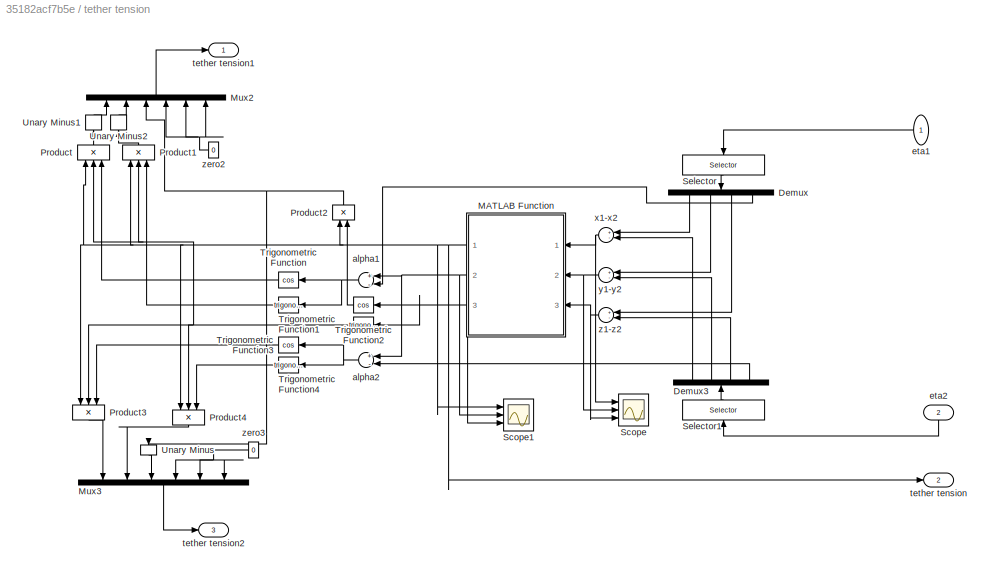
BLOCK [SubSystem] tether tension
  Ports = [2, 3]
  RequestExecContextInheritance = off
  Variant = off
BLOCK [Trigonometry] tether tension/                
  Ports = [1, 1]
BLOCK [Demux] tether tension/Demux
  DisplayOption = bar
  Ports = [1, 4]
BLOCK [Demux] tether tension/Demux3
  DisplayOption = bar
  Ports = [1, 4]
BLOCK [SubSystem] tether tension/MATLAB Function
  ErrorFcn = Stateflow.Translate.translate
  PermitHierarchicalResolution = ExplicitOnly
  Ports = [3, 3]
  RequestExecContextInheritance = off
  SFBlockType = MATLAB Function
  TreatAsAtomicUnit = on
  Variant = off
BLOCK [Demux] tether tension/MATLAB Function/ Demux 
  Outputs = 1
  Ports = [1, 1]
BLOCK [S-Function] tether tension/MATLAB Function/ SFunction 
  EnableBusSupport = on
  FunctionName = sf_sfun
  PortCounts = [3 4]
  Ports = [3, 4]
  SFunctionDeploymentMode = off
  Tag = Stateflow S-Function Main_Project 2
BLOCK [Terminator] tether tension/MATLAB Function/ Terminator 
BLOCK [Outport] tether tension/MATLAB Function/T
  IconDisplay = Port number
BLOCK [Outport] tether tension/MATLAB Function/alpha
  IconDisplay = Port number
  Port = 2
BLOCK [Outport] tether tension/MATLAB Function/beta
  IconDisplay = Port number
  Port = 3
BLOCK [Inport] tether tension/MATLAB Function/x
  IconDisplay = Port number
BLOCK [Inport] tether tension/MATLAB Function/y
  IconDisplay = Port number
  Port = 2
BLOCK [Inport] tether tension/MATLAB Function/z
  IconDisplay = Port number
  Port = 3
BLOCK [Mux] tether tension/Mux2
  DisplayOption = bar
  Inputs = 6
  Ports = [6, 1]
BLOCK [Mux] tether tension/Mux3
  DisplayOption = bar
  Inputs = 6
  Ports = [6, 1]
BLOCK [Product] tether tension/Product
  InputSameDT = off
  Inputs = 3
  OutDataTypeStr = Inherit: Inherit via internal rule
  Ports = [3, 1]
  RndMeth = Floor
  SaturateOnIntegerOverflow = off
BLOCK [Product] tether tension/Product1
  InputSameDT = off
  Inputs = 3
  OutDataTypeStr = Inherit: Inherit via internal rule
  Ports = [3, 1]
  RndMeth = Floor
  SaturateOnIntegerOverflow = off
BLOCK [Product] tether tension/Product2
  InputSameDT = off
  OutDataTypeStr = Inherit: Inherit via internal rule
  Ports = [2, 1]
  RndMeth = Floor
  SaturateOnIntegerOverflow = off
BLOCK [Product] tether tension/Product3
  InputSameDT = off
  Inputs = 3
  OutDataTypeStr = Inherit: Inherit via internal rule
  Ports = [3, 1]
  RndMeth = Floor
  SaturateOnIntegerOverflow = off
BLOCK [Product] tether tension/Product4
  InputSameDT = off
  Inputs = 3
  OutDataTypeStr = Inherit: Inherit via internal rule
  Ports = [3, 1]
  RndMeth = Floor
  SaturateOnIntegerOverflow = off
BLOCK [Scope] tether tension/Scope
  NumInputPorts = 3
  Ports = [3]
  ScopeSpecificationString = Simulink.scopes.TimeScopeBlockCfg('CurrentConfiguration', extmgr.ConfigurationSet(extmgr.Configuration('Core','General UI',true),extmgr.Configuration('Core','Source UI',true),extmgr.Configuration('Sources','WiredSimulink',true,'DataLoggingVariableName','ScopeData1'),extmgr.Configuration('Visuals','Time Domain',true,'SerializedDisplays',{struct('MinYLimReal','-0.48297','MaxYLimReal','0.54796','YLab...<+2737ch>
BLOCK [Scope] tether tension/Scope1
  NumInputPorts = 3
  Ports = [3]
  ScopeSpecificationString = Simulink.scopes.TimeScopeBlockCfg('CurrentConfiguration', extmgr.ConfigurationSet(extmgr.Configuration('Core','General UI',true),extmgr.Configuration('Core','Source UI',true),extmgr.Configuration('Sources','WiredSimulink',true,'DataLoggingVariableName','ScopeData3'),extmgr.Configuration('Visuals','Time Domain',true,'SerializedDisplays',{struct('MinYLimReal','-1925.00000','MaxYLimReal','19325.00000...<+2719ch>
BLOCK [Selector] tether tension/Selector
  IndexOptions = Index vector (dialog)
  Indices = [1 2 3 6]
  InputPortWidth = 6
  OutputSizes = 1
  Ports = [1, 1]
BLOCK [Selector] tether tension/Selector1
  IndexOptions = Index vector (dialog)
  Indices = [1 2 3 6]
  InputPortWidth = 6
  OutputSizes = 1
  Ports = [1, 1]
BLOCK [Trigonometry] tether tension/Trigonometric Function
  Operator = cos
  Ports = [1, 1]
BLOCK [Trigonometry] tether tension/Trigonometric Function1
  Ports = [1, 1]
BLOCK [Trigonometry] tether tension/Trigonometric Function2
  Operator = cos
  Ports = [1, 1]
BLOCK [Trigonometry] tether tension/Trigonometric Function3
  Operator = cos
  Ports = [1, 1]
BLOCK [Trigonometry] tether tension/Trigonometric Function4
  Ports = [1, 1]
BLOCK [UnaryMinus] tether tension/Unary Minus
BLOCK [UnaryMinus] tether tension/Unary Minus1
BLOCK [UnaryMinus] tether tension/Unary Minus2
BLOCK [Sum] tether tension/alpha1
  InputSameDT = off
  Inputs = +-
  OutDataTypeStr = Inherit: Inherit via internal rule
  Ports = [2, 1]
  SaturateOnIntegerOverflow = off
BLOCK [Sum] tether tension/alpha2
  InputSameDT = off
  Inputs = +-
  OutDataTypeStr = Inherit: Inherit via internal rule
  Ports = [2, 1]
  SaturateOnIntegerOverflow = off
BLOCK [Inport] tether tension/eta1
  IconDisplay = Port number
BLOCK [Inport] tether tension/eta2
  IconDisplay = Port number
  Port = 2
BLOCK [Outport] tether tension/tether tension
  IconDisplay = Port number
  Port = 2
BLOCK [Outport] tether tension/tether tension1
  IconDisplay = Port number
BLOCK [Outport] tether tension/tether tension2
  IconDisplay = Port number
  Port = 3
BLOCK [Sum] tether tension/x1-x2
  InputSameDT = off
  Inputs = +-
  OutDataTypeStr = Inherit: Inherit via internal rule
  Ports = [2, 1]
  SaturateOnIntegerOverflow = off
BLOCK [Sum] tether tension/y1-y2
  InputSameDT = off
  Inputs = +-
  OutDataTypeStr = Inherit: Inherit via internal rule
  Ports = [2, 1]
  SaturateOnIntegerOverflow = off
BLOCK [Sum] tether tension/z1-z2
  InputSameDT = off
  Inputs = +-
  OutDataTypeStr = Inherit: Inherit via internal rule
  Ports = [2, 1]
  SaturateOnIntegerOverflow = off
BLOCK [Constant] tether tension/zero2
  Value = 0
BLOCK [Constant] tether tension/zero3
  Value = 0
BLOCK [Scope] velocities
  Ports = [1]
  ScopeSpecificationString = Simulink.scopes.TimeScopeBlockCfg('CurrentConfiguration', extmgr.ConfigurationSet(extmgr.Configuration('Core','General UI',true),extmgr.Configuration('Core','Source UI',true),extmgr.Configuration('Sources','WiredSimulink',true,'DataLoggingVariableName','ScopeData4','DataLoggingSaveFormat','StructureWithTime','DataLoggingDecimation','1','DataLoggingDecimateData',true),extmgr.Configuration('Visuals'...<+1498ch>
BLOCK [Scope] velocities1
  NumInputPorts = 4
  Ports = [4]
  ScopeSpecificationString = C++SS(StrPVP('SaveName','ScopeData3'),StrPVP('LimitDataPoints','on'),StrPVP('DataFormat','Array'),StrPVP('Decimation','1'),StrPVP('BlockParamSampleInput','off'))
BLOCK [Display] wave direction
  Decimation = 1
  Ports = [1]
BLOCK [Scope] x and y positions
  NumInputPorts = 2
  Ports = [2]
  ScopeSpecificationString = Simulink.scopes.TimeScopeBlockCfg('CurrentConfiguration', extmgr.ConfigurationSet(extmgr.Configuration('Core','General UI',true),extmgr.Configuration('Core','Source UI',true),extmgr.Configuration('Sources','WiredSimulink',true,'DataLoggingVariableName','ScopeData2','DataLoggingSaveFormat','StructureWithTime','DataLoggingDecimation','1','DataLoggingDecimateData',true),extmgr.Configuration('Visuals'...<+2266ch>
BLOCK [Scope] x and y positions1
  NumInputPorts = 2
  Ports = [2]
  ScopeSpecificationString = Simulink.scopes.TimeScopeBlockCfg('CurrentConfiguration', extmgr.ConfigurationSet(extmgr.Configuration('Core','General UI',true),extmgr.Configuration('Core','Source UI',true),extmgr.Configuration('Sources','WiredSimulink',true,'DataLoggingVariableName','ScopeData4','DataLoggingSaveFormat','StructureWithTime','DataLoggingDecimation','1','DataLoggingDecimateData',true),extmgr.Configuration('Visuals'...<+2242ch>
BLOCK [Scope] z-position (heave)
  Ports = [1]
  ScopeSpecificationString = Simulink.scopes.TimeScopeBlockCfg('CurrentConfiguration', extmgr.ConfigurationSet(extmgr.Configuration('Core','General UI',true),extmgr.Configuration('Core','Source UI',true),extmgr.Configuration('Sources','WiredSimulink',true,'DataLoggingVariableName','ScopeData3','DataLoggingSaveFormat','StructureWithTime','DataLoggingDecimation','1','DataLoggingDecimateData',true),extmgr.Configuration('Visuals'...<+1628ch>
BLOCK [Scope] z-position (heave)1
  Ports = [1]
  ScopeSpecificationString = Simulink.scopes.TimeScopeBlockCfg('CurrentConfiguration', extmgr.ConfigurationSet(extmgr.Configuration('Core','General UI',true),extmgr.Configuration('Core','Source UI',true),extmgr.Configuration('Sources','WiredSimulink',true,'DataLoggingVariableName','ScopeData5','DataLoggingSaveFormat','StructureWithTime','DataLoggingDecimation','1','DataLoggingDecimateData',true),extmgr.Configuration('Visuals'...<+1624ch>
ANNOTATION (root): Wave glider motion control
ANNOTATION (root): Float
ANNOTATION (root): Glider
ANNOTATION 6 DOF transformation: Theta
ANNOTATION 6 DOF transformation: omega
ANNOTATION 6 DOF transformation: v
ANNOTATION 6 DOF transformation1: Theta
ANNOTATION 6 DOF transformation1: omega
ANNOTATION 6 DOF transformation1: v
ANNOTATION Rudder: Drag
ANNOTATION Rudder: Lift
ANNOTATION Wave loads/deg to 180//180: r
ANNOTATION Wave loads/deg to 180//180: x
LINE 6 DOF transformation1:1 -> Integrator3:1
LINE 6 DOF transformation:1 -> Integrator1:1
LINE CA*nu_r:1 -> Sum8:1
LINE CAf*nu_r1:1 -> Sum14:1
LINE CRB*nu1:1 -> Sum13:1
LINE CRB*nu:1 -> Sum7:1
LINE Current direction (rad)1:1 -> Current speed trans1:2
LINE Current direction (rad):1 -> Current speed trans:2
LINE Current speed (m//s)1:1 -> Current speed trans1:3
LINE Current speed (m//s):1 -> Current speed trans:3
LINE Current speed trans/Sum:1 -> Current speed trans/current1:1
LINE Current speed trans/current1/Mux:1 -> Current speed trans/current1/nu_c:1
LINE Current speed trans/current1/Product1:1 -> Current speed trans/current1/Mux:2
LINE Current speed trans/current1/Product:1 -> Current speed trans/current1/Mux:1
NET Current speed trans/current1/V_c(m//s):1 -> Current speed trans/current1/Product1:2, Current speed trans/current1/Product:2
NET Current speed trans/current1/beta_c(rad):1 -> Current speed trans/current1/cos:1, Current speed trans/current1/sin:1
LINE Current speed trans/current1/cos:1 -> Current speed trans/current1/Product:1
LINE Current speed trans/current1/sin:1 -> Current speed trans/current1/Product1:1
NET Current speed trans/current1/zero:1 -> Current speed trans/current1/Mux:3, Current speed trans/current1/Mux:4, Current speed trans/current1/Mux:5, Current speed trans/current1/Mux:6
LINE Current speed trans/current1:1 -> Current speed trans/nu_c:1
LINE Current speed trans/dir_c:1 -> Current speed trans/Sum:1
LINE Current speed trans/eta:1 -> Current speed trans/yaw:1
LINE Current speed trans/v_c:1 -> Current speed trans/current1:2
LINE Current speed trans/yaw:1 -> Current speed trans/Sum:2
LINE Current speed trans1/Sum:1 -> Current speed trans1/current1:1
LINE Current speed trans1/current1/Mux:1 -> Current speed trans1/current1/nu_c:1
LINE Current speed trans1/current1/Product1:1 -> Current speed trans1/current1/Mux:2
LINE Current speed trans1/current1/Product:1 -> Current speed trans1/current1/Mux:1
NET Current speed trans1/current1/V_c(m//s):1 -> Current speed trans1/current1/Product1:2, Current speed trans1/current1/Product:2
NET Current speed trans1/current1/beta_c(rad):1 -> Current speed trans1/current1/cos:1, Current speed trans1/current1/sin:1
LINE Current speed trans1/current1/cos:1 -> Current speed trans1/current1/Product:1
LINE Current speed trans1/current1/sin:1 -> Current speed trans1/current1/Product1:1
NET Current speed trans1/current1/zero:1 -> Current speed trans1/current1/Mux:3, Current speed trans1/current1/Mux:4, Current speed trans1/current1/Mux:5, Current speed trans1/current1/Mux:6
LINE Current speed trans1/current1:1 -> Current speed trans1/nu_c:1
LINE Current speed trans1/dir_c:1 -> Current speed trans1/Sum:1
LINE Current speed trans1/eta:1 -> Current speed trans1/yaw:1
LINE Current speed trans1/v_c:1 -> Current speed trans1/current1:2
LINE Current speed trans1/yaw:1 -> Current speed trans1/Sum:2
LINE Current speed trans1:1 -> Sum12:2
LINE Current speed trans:1 -> Sum5:2
LINE D*eta :1 -> Sum4:1
LINE Demux1:1 -> rudder forces:1
LINE Demux1:2 -> rudder forces:2
LINE Demux2:1 -> velocities1:1
LINE Demux2:2 -> velocities1:2
LINE Demux2:3 -> velocities1:3
LINE Demux2:4 -> velocities1:4
NET Demux3:1 -> Foil force:1, To Workspace4:1
LINE Demux3:2 -> Foil force:2
LINE Demux:1 -> WD loads:1
LINE Demux:2 -> WD loads:2
LINE Demux:3 -> WD loads:3
LINE G*eta:1 -> Sum1:1
NET Hydrofoil force/0:1 -> Hydrofoil force/Mux:2, Hydrofoil force/Mux:4, Hydrofoil force/Mux:5, Hydrofoil force/Mux:6
LINE Hydrofoil force/Abs:1 -> Hydrofoil force/alpha_f:1
LINE Hydrofoil force/Add:1 -> Hydrofoil force/Sqrt:1
NET Hydrofoil force/Demux:1 -> Hydrofoil force/Divide:2, Hydrofoil force/Math Function1:1
NET Hydrofoil force/Demux:2 -> Hydrofoil force/Divide:1, Hydrofoil force/Math Function:1, Hydrofoil force/Sign_z:1
LINE Hydrofoil force/Divide:1 -> Hydrofoil force/Abs:1
LINE Hydrofoil force/Gain:1 -> Hydrofoil force/foil force:1
LINE Hydrofoil force/Math Function1:1 -> Hydrofoil force/Add:2
LINE Hydrofoil force/Math Function:1 -> Hydrofoil force/Add:1
LINE Hydrofoil force/Mux:1 -> Hydrofoil force/Gain:1
LINE Hydrofoil force/Selector:1 -> Hydrofoil force/Demux:1
LINE Hydrofoil force/Sign_z:1 -> Hydrofoil force/steady foilforce:4
LINE Hydrofoil force/Sqrt:1 -> Hydrofoil force/steady foilforce:2
LINE Hydrofoil force/Subtract:1 -> Hydrofoil force/steady foilforce:1
NET Hydrofoil force/alpha_f:1 -> Hydrofoil force/Subtract:1, Hydrofoil force/steady foilforce:3
LINE Hydrofoil force/deg2rad:1 -> Hydrofoil force/Subtract:2
LINE Hydrofoil force/foil angle:1 -> Hydrofoil force/deg2rad:1
LINE Hydrofoil force/nu:1 -> Hydrofoil force/Selector:1
LINE Hydrofoil force/steady foilforce/Add1:1 -> Hydrofoil force/steady foilforce/Product7:1
LINE Hydrofoil force/steady foilforce/Constant1:1 -> Hydrofoil force/steady foilforce/Sum1:2
LINE Hydrofoil force/steady foilforce/Constant2:1 -> Hydrofoil force/steady foilforce/MATLAB Function:2
LINE Hydrofoil force/steady foilforce/Constant3:1 -> Hydrofoil force/steady foilforce/MATLAB Function:3
LINE Hydrofoil force/steady foilforce/Constant4:1 -> Hydrofoil force/steady foilforce/MATLAB Function:4
NET Hydrofoil force/steady foilforce/Gain1:1 -> Hydrofoil force/steady foilforce/Product2:2, Hydrofoil force/steady foilforce/Product4:2
NET Hydrofoil force/steady foilforce/MATLAB Function:1 -> Hydrofoil force/steady foilforce/Math Function2:1, Hydrofoil force/steady foilforce/Product2:1
LINE Hydrofoil force/steady foilforce/Math Function2:1 -> Hydrofoil force/steady foilforce/gain :1
LINE Hydrofoil force/steady foilforce/Product1:1 -> Hydrofoil force/steady foilforce/Gain1:1
NET Hydrofoil force/steady foilforce/Product2:1 -> Hydrofoil force/steady foilforce/Product5:2, Hydrofoil force/steady foilforce/Product:1
LINE Hydrofoil force/steady foilforce/Product3:1 -> Hydrofoil force/steady foilforce/Subtract1:2
NET Hydrofoil force/steady foilforce/Product4:1 -> Hydrofoil force/steady foilforce/Product3:1, Hydrofoil force/steady foilforce/Product6:1
LINE Hydrofoil force/steady foilforce/Product5:1 -> Hydrofoil force/steady foilforce/Add1:2
LINE Hydrofoil force/steady foilforce/Product6:1 -> Hydrofoil force/steady foilforce/Add1:1
LINE Hydrofoil force/steady foilforce/Product7:1 -> Hydrofoil force/steady foilforce/Fz:1
LINE Hydrofoil force/steady foilforce/Product:1 -> Hydrofoil force/steady foilforce/Subtract1:1
LINE Hydrofoil force/steady foilforce/Subtract1:1 -> Hydrofoil force/steady foilforce/Fx:1
LINE Hydrofoil force/steady foilforce/Sum1:1 -> Hydrofoil force/steady foilforce/Product4:1
NET Hydrofoil force/steady foilforce/Trigonometric Function1:1 -> Hydrofoil force/steady foilforce/Product3:2, Hydrofoil force/steady foilforce/Product5:1
NET Hydrofoil force/steady foilforce/Trigonometric Function:1 -> Hydrofoil force/steady foilforce/Product6:2, Hydrofoil force/steady foilforce/Product:2
LINE Hydrofoil force/steady foilforce/Unary Minus:1 -> Hydrofoil force/steady foilforce/Product7:2
NET Hydrofoil force/steady foilforce/Vf :1 -> Hydrofoil force/steady foilforce/Product1:1, Hydrofoil force/steady foilforce/Product1:2
LINE Hydrofoil force/steady foilforce/alpha:1 -> Hydrofoil force/steady foilforce/MATLAB Function:1
NET Hydrofoil force/steady foilforce/alpha_f1:1 -> Hydrofoil force/steady foilforce/Trigonometric Function1:1, Hydrofoil force/steady foilforce/Trigonometric Function:1
LINE Hydrofoil force/steady foilforce/gain :1 -> Hydrofoil force/steady foilforce/Sum1:1
LINE Hydrofoil force/steady foilforce/sign_z:1 -> Hydrofoil force/steady foilforce/Unary Minus:1
LINE Hydrofoil force/steady foilforce:1 -> Hydrofoil force/Mux:3
LINE Hydrofoil force/steady foilforce:2 -> Hydrofoil force/Mux:1
NET Hydrofoil force:1 -> Selector2:1, Sum11:2
NET Integrator1:1 -> 6 DOF transformation:1, Current speed trans:1, G*eta:2, Wave loads:1, plots:1, tether tension:1
NET Integrator2:1 -> 6 DOF transformation1:2, CRB*nu1:3, Sum12:1, plots1:2
NET Integrator3:1 -> 6 DOF transformation1:1, Current speed trans1:1, PID:1, plots1:1, tether tension:2
NET Integrator:1 -> 6 DOF transformation:2, CRB*nu:3, Sum5:1, plots:2
NET L*U_r1:1 -> CAf*nu_r1:2, CRB*nu1:2
NET L*U_r:1 -> CA*nu_r:2, CRB*nu:2
LINE L1:1 -> L*U_r1:1
LINE L:1 -> L*U_r:1
LINE Minv*tau1:1 -> Integrator2:1
LINE Minv*tau:1 -> Integrator:1
LINE Nonlinear damping/Cross-flow drag and surge resistance:1 -> Nonlinear damping/Mux:1
LINE Nonlinear damping/Cross-flow drag and surge resistance:2 -> Nonlinear damping/Mux:2
LINE Nonlinear damping/Cross-flow drag and surge resistance:3 -> Nonlinear damping/Mux:6
LINE Nonlinear damping/Mux:1 -> Nonlinear damping/d(vr):1
LINE Nonlinear damping/nu_r:1 -> Nonlinear damping/Cross-flow drag and surge resistance:1
NET Nonlinear damping/zero:1 -> Nonlinear damping/Mux:3, Nonlinear damping/Mux:4, Nonlinear damping/Mux:5
LINE Nonlinear damping:1 -> Sum9:2
LINE PID/Gain:1 -> PID/Sum16:2
LINE PID/PID Controller:1 -> PID/Saturation:1
LINE PID/Saturation:1 -> PID/Rudder angle1:1
LINE PID/Selector3:1 -> PID/Sum16:1
LINE PID/Sum16:1 -> PID/PID Controller:1
LINE PID/set_course:1 -> PID/Gain:1
LINE PID/yaw:1 -> PID/Selector3:1
NET PID:1 -> Rudder angle:1, Rudder:1
LINE Rudder/0:1 -> Rudder/Mux2:3
LINE Rudder/1:1 -> Rudder/Mux2:4
LINE Rudder/2:1 -> Rudder/Mux2:5
LINE Rudder/Constant1:1 -> Rudder/Sum1:2
LINE Rudder/Constant2:1 -> Rudder/MATLAB Function:2
LINE Rudder/Constant3:1 -> Rudder/MATLAB Function:3
LINE Rudder/Constant4:1 -> Rudder/MATLAB Function:4
NET Rudder/MATLAB Function:1 -> Rudder/Math Function:1, Rudder/Product2:1
LINE Rudder/Math Function:1 -> Rudder/gain :1
LINE Rudder/Mux2:1 -> Rudder/[XYZN]':1
LINE Rudder/Product1:1 -> Rudder/pi//(2*stall)2:1
NET Rudder/Product2:1 -> Rudder/0:1, Rudder/1:1, Rudder/2:1, Rudder/Mux2:2, Rudder/pi//(2*stall)7:1
LINE Rudder/Product4:1 -> Rudder/gain 2:1
NET Rudder/Selector:1 -> Rudder/Product1:1, Rudder/Product1:2
LINE Rudder/Sum1:1 -> Rudder/Product4:1
LINE Rudder/Vrel:1 -> Rudder/Selector:1
LINE Rudder/alpha :1 -> Rudder/MATLAB Function:1
LINE Rudder/gain 2:1 -> Rudder/Mux2:1
LINE Rudder/gain :1 -> Rudder/Sum1:1
NET Rudder/pi//(2*stall)2:1 -> Rudder/Product2:2, Rudder/Product4:2
LINE Rudder/pi//(2*stall)7:1 -> Rudder/Mux2:6
NET Rudder:1 -> Selector3:1, Sum6:2
NET Selector1:1 -> To Workspace5:1, WF load:1
LINE Selector2:1 -> Demux3:1
LINE Selector3:1 -> Demux1:1
LINE Selector:1 -> Demux:1
LINE Set-course:1 -> PID:2
LINE Spring stiffness:1 -> G*eta:1
LINE Sum10:1 -> Sum11:1
LINE Sum11:1 -> Minv*tau1:2
NET Sum12:1 -> CAf*nu_r1:3, Hydrofoil force:2, Rudder:2, quardratic damping:1, speed2:1
LINE Sum13:1 -> Sum10:2
LINE Sum14:1 -> Sum13:2
LINE Sum15:1 -> Sum14:2
LINE Sum1:1 -> Sum9:1
LINE Sum2:1 -> Minv*tau:2
LINE Sum3:1 -> Sum1:2
LINE Sum4:1 -> Sum8:2
NET Sum5:1 -> CA*nu_r:3, D*eta :2, Nonlinear damping:1, speed:1
LINE Sum6:1 -> Sum15:1
LINE Sum7:1 -> Sum2:1
LINE Sum8:1 -> Sum7:2
LINE Sum9:1 -> Sum4:2
LINE Wave loads/Abs:1 -> Wave loads/Prelookup [0,180]:1
NET Wave loads/Bus Selector:1 -> Wave loads/Wave loads for heading1:3, Wave loads/Wave loads for heading2:3
NET Wave loads/Bus Selector:2 -> Wave loads/Wave loads for heading1:4, Wave loads/Wave loads for heading2:4
NET Wave loads/Bus Selector:3 -> Wave loads/Wave loads for heading1:5, Wave loads/Wave loads for heading2:5
NET Wave loads/Bus Selector:4 -> Wave loads/Wave loads for heading1:6, Wave loads/Wave loads for heading2:6
NET Wave loads/Bus Selector:5 -> Wave loads/Amp_wave:1, Wave loads/Wave loads for heading1:7, Wave loads/Wave loads for heading2:7
NET Wave loads/Compare To Constant:1 -> Wave loads/psi1:2, Wave loads/psi2:2
NET Wave loads/Conversion:1 -> Wave loads/Sum2:2, Wave loads/psi1:1
LINE Wave loads/D2R :1 -> Wave loads/Wave loads for heading2:2
LINE Wave loads/D2R:1 -> Wave loads/Wave loads for heading1:2
LINE Wave loads/Demux1:1 -> Wave loads/Gain9:1
LINE Wave loads/Demux1:2 -> Wave loads/Gain8:1
LINE Wave loads/Demux1:3 -> Wave loads/Gain5:1
LINE Wave loads/Demux1:4 -> Wave loads/Gain6:1
LINE Wave loads/Demux1:5 -> Wave loads/Gain7:1
LINE Wave loads/Demux1:6 -> Wave loads/Gain10:1
LINE Wave loads/Demux:1 -> Wave loads/Gain:1
LINE Wave loads/Demux:2 -> Wave loads/Gain1:1
LINE Wave loads/Demux:3 -> Wave loads/Mux:3
LINE Wave loads/Demux:4 -> Wave loads/Gain2:1
LINE Wave loads/Demux:5 -> Wave loads/Gain3:1
LINE Wave loads/Demux:6 -> Wave loads/Gain4:1
LINE Wave loads/Gain10:1 -> Wave loads/Mux1:6
LINE Wave loads/Gain1:1 -> Wave loads/Mux:2
LINE Wave loads/Gain2:1 -> Wave loads/Mux:4
LINE Wave loads/Gain3:1 -> Wave loads/Mux:5
LINE Wave loads/Gain4:1 -> Wave loads/Mux:6
LINE Wave loads/Gain5:1 -> Wave loads/Mux1:3
LINE Wave loads/Gain6:1 -> Wave loads/Mux1:4
LINE Wave loads/Gain7:1 -> Wave loads/Mux1:5
LINE Wave loads/Gain8:1 -> Wave loads/Mux1:2
LINE Wave loads/Gain9:1 -> Wave loads/Mux1:1
LINE Wave loads/Gain:1 -> Wave loads/Mux:1
LINE Wave loads/Mux1:1 -> Wave loads/tau_WD:1
LINE Wave loads/Mux:1 -> Wave loads/tau_WF:1
NET Wave loads/Prelookup [0,180]:1 -> Wave loads/Conversion:1, Wave loads/k = 0:18:1
NET Wave loads/Prelookup [0,180]:2 -> Wave loads/Product1:1, Wave loads/Product3:1, Wave loads/Sum4:1
LINE Wave loads/Product1:1 -> Wave loads/Sum1:2
LINE Wave loads/Product2:1 -> Wave loads/Sum5:1
LINE Wave loads/Product3:1 -> Wave loads/Sum5:2
LINE Wave loads/Product:1 -> Wave loads/Sum1:1
LINE Wave loads/R2D:1 -> Wave loads/deg to 180//180:1
LINE Wave loads/Selector:1 -> Wave loads/R2D:1
LINE Wave loads/Sign:1 -> Wave loads/Compare To Constant:1
LINE Wave loads/Sum1:1 -> Wave loads/Demux:1
LINE Wave loads/Sum2:1 -> Wave loads/psi2:1
NET Wave loads/Sum4:1 -> Wave loads/Product2:1, Wave loads/Product:1
LINE Wave loads/Sum5:1 -> Wave loads/Demux1:1
LINE Wave loads/Wave loads for heading1/Clock:1 -> Wave loads/Wave loads for heading1/Product1:2
NET Wave loads/Wave loads for heading1/Omega:1 -> Wave loads/Wave loads for heading1/Product1:1, Wave loads/Wave loads for heading1/Wave component loop:3, Wave loads/Wave loads for heading1/Width:1
LINE Wave loads/Wave loads for heading1/Phase:1 -> Wave loads/Wave loads for heading1/Sum:3
LINE Wave loads/Wave loads for heading1/Position phase/Product2:1 -> Wave loads/Wave loads for heading1/Position phase/Sum5:1
LINE Wave loads/Wave loads for heading1/Position phase/Product6:1 -> Wave loads/Wave loads for heading1/Position phase/Sum5:2
LINE Wave loads/Wave loads for heading1/Position phase/Product7:1 -> Wave loads/Wave loads for heading1/Position phase/pos phase:1
LINE Wave loads/Wave loads for heading1/Position phase/Sum5:1 -> Wave loads/Wave loads for heading1/Position phase/Product7:1
LINE Wave loads/Wave loads for heading1/Position phase/cos:1 -> Wave loads/Wave loads for heading1/Position phase/Product6:1
NET Wave loads/Wave loads for heading1/Position phase/eta LF:1 -> Wave loads/Wave loads for heading1/Position phase/x-position:1, Wave loads/Wave loads for heading1/Position phase/y-position:1
NET Wave loads/Wave loads for heading1/Position phase/psi wave:1 -> Wave loads/Wave loads for heading1/Position phase/cos:1, Wave loads/Wave loads for heading1/Position phase/sin:1
LINE Wave loads/Wave loads for heading1/Position phase/sin:1 -> Wave loads/Wave loads for heading1/Position phase/Product2:1
LINE Wave loads/Wave loads for heading1/Position phase/wavenum:1 -> Wave loads/Wave loads for heading1/Position phase/Product7:2
LINE Wave loads/Wave loads for heading1/Position phase/x-position:1 -> Wave loads/Wave loads for heading1/Position phase/Product6:2
LINE Wave loads/Wave loads for heading1/Position phase/y-position:1 -> Wave loads/Wave loads for heading1/Position phase/Product2:2
LINE Wave loads/Wave loads for heading1/Position phase:1 -> Wave loads/Wave loads for heading1/Sum:1
LINE Wave loads/Wave loads for heading1/Product1:1 -> Wave loads/Wave loads for heading1/Sum:2
LINE Wave loads/Wave loads for heading1/Sum1:1 -> Wave loads/Wave loads for heading1/Wave component loop:2
LINE Wave loads/Wave loads for heading1/Sum:1 -> Wave loads/Wave loads for heading1/Wave component loop:4
LINE Wave loads/Wave loads for heading1/Wave component loop/                :1 -> Wave loads/Wave loads for heading1/Wave component loop/Product1:1
NET Wave loads/Wave loads for heading1/Wave component loop/Direct Lookup Table (n-D) Beta:1 -> Wave loads/Wave loads for heading1/Wave component loop/Force RAO tables:1, Wave loads/Wave loads for heading1/Wave component loop/WD RAO tables:1
NET Wave loads/Wave loads for heading1/Wave component loop/For Iterator:1 -> Wave loads/Wave loads for heading1/Wave component loop/Selector2:2, Wave loads/Wave loads for heading1/Wave component loop/Selector3:2, Wave loads/Wave loads for heading1/Wave component loop/Selector4:2, Wave loads/Wave loads for heading1/Wave component loop/Selector5:2
LINE Wave loads/Wave loads for heading1/Wave component loop/Force RAO tables/Lookup Table (n-D) Amp1:1 -> Wave loads/Wave loads for heading1/Wave component loop/Force RAO tables/Mux1:1
LINE Wave loads/Wave loads for heading1/Wave component loop/Force RAO tables/Lookup Table (n-D) Amp2:1 -> Wave loads/Wave loads for heading1/Wave component loop/Force RAO tables/Mux1:2
LINE Wave loads/Wave loads for heading1/Wave component loop/Force RAO tables/Lookup Table (n-D) Amp3:1 -> Wave loads/Wave loads for heading1/Wave component loop/Force RAO tables/Mux1:3
LINE Wave loads/Wave loads for heading1/Wave component loop/Force RAO tables/Lookup Table (n-D) Amp4:1 -> Wave loads/Wave loads for heading1/Wave component loop/Force RAO tables/Mux1:4
LINE Wave loads/Wave loads for heading1/Wave component loop/Force RAO tables/Lookup Table (n-D) Amp5:1 -> Wave loads/Wave loads for heading1/Wave component loop/Force RAO tables/Mux1:5
LINE Wave loads/Wave loads for heading1/Wave component loop/Force RAO tables/Lookup Table (n-D) Amp6:1 -> Wave loads/Wave loads for heading1/Wave component loop/Force RAO tables/Mux1:6
LINE Wave loads/Wave loads for heading1/Wave component loop/Force RAO tables/Lookup Table (n-D) Phase1:1 -> Wave loads/Wave loads for heading1/Wave component loop/Force RAO tables/Mux2:1
LINE Wave loads/Wave loads for heading1/Wave component loop/Force RAO tables/Lookup Table (n-D) Phase2:1 -> Wave loads/Wave loads for heading1/Wave component loop/Force RAO tables/Mux2:2
LINE Wave loads/Wave loads for heading1/Wave component loop/Force RAO tables/Lookup Table (n-D) Phase4:1 -> Wave loads/Wave loads for heading1/Wave component loop/Force RAO tables/Mux2:4
LINE Wave loads/Wave loads for heading1/Wave component loop/Force RAO tables/Lookup Table (n-D) Phase5:1 -> Wave loads/Wave loads for heading1/Wave component loop/Force RAO tables/Mux2:5
LINE Wave loads/Wave loads for heading1/Wave component loop/Force RAO tables/Lookup Table (n-D) Phase6:1 -> Wave loads/Wave loads for heading1/Wave component loop/Force RAO tables/Mux2:6
LINE Wave loads/Wave loads for heading1/Wave component loop/Force RAO tables/Lookup Table (n-D) Phase:1 -> Wave loads/Wave loads for heading1/Wave component loop/Force RAO tables/Mux2:3
LINE Wave loads/Wave loads for heading1/Wave component loop/Force RAO tables/Mux1:1 -> Wave loads/Wave loads for heading1/Wave component loop/Force RAO tables/amp:1
LINE Wave loads/Wave loads for heading1/Wave component loop/Force RAO tables/Mux2:1 -> Wave loads/Wave loads for heading1/Wave component loop/Force RAO tables/phase:1
NET Wave loads/Wave loads for heading1/Wave component loop/Force RAO tables/beta:1 -> Wave loads/Wave loads for heading1/Wave component loop/Force RAO tables/Lookup Table (n-D) Amp1:2, Wave loads/Wave loads for heading1/Wave component loop/Force RAO tables/Lookup Table (n-D) Amp2:2, Wave loads/Wave loads for heading1/Wave component loop/Force RAO tables/Lookup Table (n-D) Amp3:2, Wave loads/Wave loads for heading1/Wave component loop/Force RAO tables/Lookup Table (n-D) Amp4:2, Wave loads/Wave loads for heading1/Wave component loop/Force RAO tables/Lookup Table (n-D) Amp5:2, Wave loads/Wave loads for heading1/Wave component loop/Force RAO tables/Lookup Table (n-D) Amp6:2, Wave loads/Wave loads for heading1/Wave component loop/Force RAO tables/Lookup Table (n-D) Phase1:2, Wave loads/Wave loads for heading1/Wave component loop/Force RAO tables/Lookup Table (n-D) Phase2:2, Wave loads/Wave loads for heading1/Wave component loop/Force RAO tables/Lookup Table (n-D) Phase4:2, Wave loads/Wave loads for heading1/Wave component loop/Force RAO tables/Lookup Table (n-D) Phase5:2, Wave loads/Wave loads for heading1/Wave component loop/Force RAO tables/Lookup Table (n-D) Phase6:2, Wave loads/Wave loads for heading1/Wave component loop/Force RAO tables/Lookup Table (n-D) Phase:2
NET Wave loads/Wave loads for heading1/Wave component loop/Force RAO tables/w:1 -> Wave loads/Wave loads for heading1/Wave component loop/Force RAO tables/Lookup Table (n-D) Amp1:1, Wave loads/Wave loads for heading1/Wave component loop/Force RAO tables/Lookup Table (n-D) Amp2:1, Wave loads/Wave loads for heading1/Wave component loop/Force RAO tables/Lookup Table (n-D) Amp3:1, Wave loads/Wave loads for heading1/Wave component loop/Force RAO tables/Lookup Table (n-D) Amp4:1, Wave loads/Wave loads for heading1/Wave component loop/Force RAO tables/Lookup Table (n-D) Amp5:1, Wave loads/Wave loads for heading1/Wave component loop/Force RAO tables/Lookup Table (n-D) Amp6:1, Wave loads/Wave loads for heading1/Wave component loop/Force RAO tables/Lookup Table (n-D) Phase1:1, Wave loads/Wave loads for heading1/Wave component loop/Force RAO tables/Lookup Table (n-D) Phase2:1, Wave loads/Wave loads for heading1/Wave component loop/Force RAO tables/Lookup Table (n-D) Phase4:1, Wave loads/Wave loads for heading1/Wave component loop/Force RAO tables/Lookup Table (n-D) Phase5:1, Wave loads/Wave loads for heading1/Wave component loop/Force RAO tables/Lookup Table (n-D) Phase6:1, Wave loads/Wave loads for heading1/Wave component loop/Force RAO tables/Lookup Table (n-D) Phase:1
LINE Wave loads/Wave loads for heading1/Wave component loop/Force RAO tables:1 -> Wave loads/Wave loads for heading1/Wave component loop/Product4:1
LINE Wave loads/Wave loads for heading1/Wave component loop/Force RAO tables:2 -> Wave loads/Wave loads for heading1/Wave component loop/Sum5:1
LINE Wave loads/Wave loads for heading1/Wave component loop/Memory1:1 -> Wave loads/Wave loads for heading1/Wave component loop/Sum1:2
LINE Wave loads/Wave loads for heading1/Wave component loop/Memory2:1 -> Wave loads/Wave loads for heading1/Wave component loop/Sum4:2
LINE Wave loads/Wave loads for heading1/Wave component loop/Omega:1 -> Wave loads/Wave loads for heading1/Wave component loop/Selector2:1
LINE Wave loads/Wave loads for heading1/Wave component loop/Phase_tot:1 -> Wave loads/Wave loads for heading1/Wave component loop/Selector5:1
LINE Wave loads/Wave loads for heading1/Wave component loop/Prelookup1:1 -> Wave loads/Wave loads for heading1/Wave component loop/Direct Lookup Table (n-D) Beta:1
LINE Wave loads/Wave loads for heading1/Wave component loop/Product1:1 -> Wave loads/Wave loads for heading1/Wave component loop/Sum4:1
LINE Wave loads/Wave loads for heading1/Wave component loop/Product3:1 -> Wave loads/Wave loads for heading1/Wave component loop/Sum1:1
LINE Wave loads/Wave loads for heading1/Wave component loop/Product4:1 -> Wave loads/Wave loads for heading1/Wave component loop/Product1:2
LINE Wave loads/Wave loads for heading1/Wave component loop/Psi_r:1 -> Wave loads/Wave loads for heading1/Wave component loop/Selector3:1
NET Wave loads/Wave loads for heading1/Wave component loop/Selector2:1 -> Wave loads/Wave loads for heading1/Wave component loop/Force RAO tables:2, Wave loads/Wave loads for heading1/Wave component loop/WD RAO tables:2
LINE Wave loads/Wave loads for heading1/Wave component loop/Selector3:1 -> Wave loads/Wave loads for heading1/Wave component loop/[-inf inf] to [-pi pi]:1
NET Wave loads/Wave loads for heading1/Wave component loop/Selector4:1 -> Wave loads/Wave loads for heading1/Wave component loop/Product3:2, Wave loads/Wave loads for heading1/Wave component loop/Product3:3, Wave loads/Wave loads for heading1/Wave component loop/Product4:2
LINE Wave loads/Wave loads for heading1/Wave component loop/Selector5:1 -> Wave loads/Wave loads for heading1/Wave component loop/Sum5:2
NET Wave loads/Wave loads for heading1/Wave component loop/Sum1:1 -> Wave loads/Wave loads for heading1/Wave component loop/Memory1:1, Wave loads/Wave loads for heading1/Wave component loop/tau_WD:1
NET Wave loads/Wave loads for heading1/Wave component loop/Sum4:1 -> Wave loads/Wave loads for heading1/Wave component loop/Memory2:1, Wave loads/Wave loads for heading1/Wave component loop/tau_WF:1
LINE Wave loads/Wave loads for heading1/Wave component loop/Sum5:1 -> Wave loads/Wave loads for heading1/Wave component loop/                :1
NET Wave loads/Wave loads for heading1/Wave component loop/WD RAO tables/Constant:1 -> Wave loads/Wave loads for heading1/Wave component loop/WD RAO tables/Mux1:3, Wave loads/Wave loads for heading1/Wave component loop/WD RAO tables/Mux1:4, Wave loads/Wave loads for heading1/Wave component loop/WD RAO tables/Mux1:5
LINE Wave loads/Wave loads for heading1/Wave component loop/WD RAO tables/Lookup Table (n-D) Wavedrift 1:1 -> Wave loads/Wave loads for heading1/Wave component loop/WD RAO tables/Mux1:1
LINE Wave loads/Wave loads for heading1/Wave component loop/WD RAO tables/Lookup Table (n-D) Wavedrift 2:1 -> Wave loads/Wave loads for heading1/Wave component loop/WD RAO tables/Mux1:2
LINE Wave loads/Wave loads for heading1/Wave component loop/WD RAO tables/Lookup Table (n-D) Wavedrift 3:1 -> Wave loads/Wave loads for heading1/Wave component loop/WD RAO tables/Mux1:6
LINE Wave loads/Wave loads for heading1/Wave component loop/WD RAO tables/Mux1:1 -> Wave loads/Wave loads for heading1/Wave component loop/WD RAO tables/amp:1
NET Wave loads/Wave loads for heading1/Wave component loop/WD RAO tables/beta:1 -> Wave loads/Wave loads for heading1/Wave component loop/WD RAO tables/Lookup Table (n-D) Wavedrift 1:2, Wave loads/Wave loads for heading1/Wave component loop/WD RAO tables/Lookup Table (n-D) Wavedrift 2:2, Wave loads/Wave loads for heading1/Wave component loop/WD RAO tables/Lookup Table (n-D) Wavedrift 3:2
NET Wave loads/Wave loads for heading1/Wave component loop/WD RAO tables/w:1 -> Wave loads/Wave loads for heading1/Wave component loop/WD RAO tables/Lookup Table (n-D) Wavedrift 1:1, Wave loads/Wave loads for heading1/Wave component loop/WD RAO tables/Lookup Table (n-D) Wavedrift 2:1, Wave loads/Wave loads for heading1/Wave component loop/WD RAO tables/Lookup Table (n-D) Wavedrift 3:1
LINE Wave loads/Wave loads for heading1/Wave component loop/WD RAO tables:1 -> Wave loads/Wave loads for heading1/Wave component loop/Product3:1
LINE Wave loads/Wave loads for heading1/Wave component loop/Zeta_a:1 -> Wave loads/Wave loads for heading1/Wave component loop/Selector4:1
LINE Wave loads/Wave loads for heading1/Wave component loop/[-inf inf] to [-pi pi]:1 -> Wave loads/Wave loads for heading1/Wave component loop/Prelookup1:1
LINE Wave loads/Wave loads for heading1/Wave component loop/number of iterations:1 -> Wave loads/Wave loads for heading1/Wave component loop/For Iterator:1
LINE Wave loads/Wave loads for heading1/Wave component loop:1 -> Wave loads/Wave loads for heading1/tau_WF:1
LINE Wave loads/Wave loads for heading1/Wave component loop:2 -> Wave loads/Wave loads for heading1/tau_WD:1
LINE Wave loads/Wave loads for heading1/Width:1 -> Wave loads/Wave loads for heading1/Wave component loop:1
LINE Wave loads/Wave loads for heading1/Zeta_a:1 -> Wave loads/Wave loads for heading1/Wave component loop:5
LINE Wave loads/Wave loads for heading1/eta:1 -> Wave loads/Wave loads for heading1/Position phase:3
LINE Wave loads/Wave loads for heading1/psi:1 -> Wave loads/Wave loads for heading1/Sum1:1
NET Wave loads/Wave loads for heading1/psi_wave:1 -> Wave loads/Wave loads for heading1/Position phase:1, Wave loads/Wave loads for heading1/Sum1:2
LINE Wave loads/Wave loads for heading1/wavenum:1 -> Wave loads/Wave loads for heading1/Position phase:2
LINE Wave loads/Wave loads for heading1:1 -> Wave loads/Product:2
LINE Wave loads/Wave loads for heading1:2 -> Wave loads/Product2:2
LINE Wave loads/Wave loads for heading2/Clock:1 -> Wave loads/Wave loads for heading2/Product1:2
NET Wave loads/Wave loads for heading2/Omega:1 -> Wave loads/Wave loads for heading2/Product1:1, Wave loads/Wave loads for heading2/Wave component loop:3, Wave loads/Wave loads for heading2/Width:1
LINE Wave loads/Wave loads for heading2/Phase:1 -> Wave loads/Wave loads for heading2/Sum:3
LINE Wave loads/Wave loads for heading2/Position phase/Product2:1 -> Wave loads/Wave loads for heading2/Position phase/Sum5:1
LINE Wave loads/Wave loads for heading2/Position phase/Product6:1 -> Wave loads/Wave loads for heading2/Position phase/Sum5:2
LINE Wave loads/Wave loads for heading2/Position phase/Product7:1 -> Wave loads/Wave loads for heading2/Position phase/pos phase:1
LINE Wave loads/Wave loads for heading2/Position phase/Sum5:1 -> Wave loads/Wave loads for heading2/Position phase/Product7:1
LINE Wave loads/Wave loads for heading2/Position phase/cos:1 -> Wave loads/Wave loads for heading2/Position phase/Product6:1
NET Wave loads/Wave loads for heading2/Position phase/eta LF:1 -> Wave loads/Wave loads for heading2/Position phase/x-position:1, Wave loads/Wave loads for heading2/Position phase/y-position:1
NET Wave loads/Wave loads for heading2/Position phase/psi wave:1 -> Wave loads/Wave loads for heading2/Position phase/cos:1, Wave loads/Wave loads for heading2/Position phase/sin:1
LINE Wave loads/Wave loads for heading2/Position phase/sin:1 -> Wave loads/Wave loads for heading2/Position phase/Product2:1
LINE Wave loads/Wave loads for heading2/Position phase/wavenum:1 -> Wave loads/Wave loads for heading2/Position phase/Product7:2
LINE Wave loads/Wave loads for heading2/Position phase/x-position:1 -> Wave loads/Wave loads for heading2/Position phase/Product6:2
LINE Wave loads/Wave loads for heading2/Position phase/y-position:1 -> Wave loads/Wave loads for heading2/Position phase/Product2:2
LINE Wave loads/Wave loads for heading2/Position phase:1 -> Wave loads/Wave loads for heading2/Sum:1
LINE Wave loads/Wave loads for heading2/Product1:1 -> Wave loads/Wave loads for heading2/Sum:2
LINE Wave loads/Wave loads for heading2/Sum1:1 -> Wave loads/Wave loads for heading2/Wave component loop:2
LINE Wave loads/Wave loads for heading2/Sum:1 -> Wave loads/Wave loads for heading2/Wave component loop:4
LINE Wave loads/Wave loads for heading2/Wave component loop/                :1 -> Wave loads/Wave loads for heading2/Wave component loop/Product1:1
NET Wave loads/Wave loads for heading2/Wave component loop/Direct Lookup Table (n-D) Beta:1 -> Wave loads/Wave loads for heading2/Wave component loop/Force RAO tables:1, Wave loads/Wave loads for heading2/Wave component loop/WD RAO tables:1
NET Wave loads/Wave loads for heading2/Wave component loop/For Iterator:1 -> Wave loads/Wave loads for heading2/Wave component loop/Selector2:2, Wave loads/Wave loads for heading2/Wave component loop/Selector3:2, Wave loads/Wave loads for heading2/Wave component loop/Selector4:2, Wave loads/Wave loads for heading2/Wave component loop/Selector5:2
LINE Wave loads/Wave loads for heading2/Wave component loop/Force RAO tables/Lookup Table (n-D) Amp1:1 -> Wave loads/Wave loads for heading2/Wave component loop/Force RAO tables/Mux1:1
LINE Wave loads/Wave loads for heading2/Wave component loop/Force RAO tables/Lookup Table (n-D) Amp2:1 -> Wave loads/Wave loads for heading2/Wave component loop/Force RAO tables/Mux1:2
LINE Wave loads/Wave loads for heading2/Wave component loop/Force RAO tables/Lookup Table (n-D) Amp3:1 -> Wave loads/Wave loads for heading2/Wave component loop/Force RAO tables/Mux1:3
LINE Wave loads/Wave loads for heading2/Wave component loop/Force RAO tables/Lookup Table (n-D) Amp4:1 -> Wave loads/Wave loads for heading2/Wave component loop/Force RAO tables/Mux1:4
LINE Wave loads/Wave loads for heading2/Wave component loop/Force RAO tables/Lookup Table (n-D) Amp5:1 -> Wave loads/Wave loads for heading2/Wave component loop/Force RAO tables/Mux1:5
LINE Wave loads/Wave loads for heading2/Wave component loop/Force RAO tables/Lookup Table (n-D) Amp6:1 -> Wave loads/Wave loads for heading2/Wave component loop/Force RAO tables/Mux1:6
LINE Wave loads/Wave loads for heading2/Wave component loop/Force RAO tables/Lookup Table (n-D) Phase1:1 -> Wave loads/Wave loads for heading2/Wave component loop/Force RAO tables/Mux2:1
LINE Wave loads/Wave loads for heading2/Wave component loop/Force RAO tables/Lookup Table (n-D) Phase2:1 -> Wave loads/Wave loads for heading2/Wave component loop/Force RAO tables/Mux2:2
LINE Wave loads/Wave loads for heading2/Wave component loop/Force RAO tables/Lookup Table (n-D) Phase4:1 -> Wave loads/Wave loads for heading2/Wave component loop/Force RAO tables/Mux2:4
LINE Wave loads/Wave loads for heading2/Wave component loop/Force RAO tables/Lookup Table (n-D) Phase5:1 -> Wave loads/Wave loads for heading2/Wave component loop/Force RAO tables/Mux2:5
LINE Wave loads/Wave loads for heading2/Wave component loop/Force RAO tables/Lookup Table (n-D) Phase6:1 -> Wave loads/Wave loads for heading2/Wave component loop/Force RAO tables/Mux2:6
LINE Wave loads/Wave loads for heading2/Wave component loop/Force RAO tables/Lookup Table (n-D) Phase:1 -> Wave loads/Wave loads for heading2/Wave component loop/Force RAO tables/Mux2:3
LINE Wave loads/Wave loads for heading2/Wave component loop/Force RAO tables/Mux1:1 -> Wave loads/Wave loads for heading2/Wave component loop/Force RAO tables/amp:1
LINE Wave loads/Wave loads for heading2/Wave component loop/Force RAO tables/Mux2:1 -> Wave loads/Wave loads for heading2/Wave component loop/Force RAO tables/phase:1
NET Wave loads/Wave loads for heading2/Wave component loop/Force RAO tables/beta:1 -> Wave loads/Wave loads for heading2/Wave component loop/Force RAO tables/Lookup Table (n-D) Amp1:2, Wave loads/Wave loads for heading2/Wave component loop/Force RAO tables/Lookup Table (n-D) Amp2:2, Wave loads/Wave loads for heading2/Wave component loop/Force RAO tables/Lookup Table (n-D) Amp3:2, Wave loads/Wave loads for heading2/Wave component loop/Force RAO tables/Lookup Table (n-D) Amp4:2, Wave loads/Wave loads for heading2/Wave component loop/Force RAO tables/Lookup Table (n-D) Amp5:2, Wave loads/Wave loads for heading2/Wave component loop/Force RAO tables/Lookup Table (n-D) Amp6:2, Wave loads/Wave loads for heading2/Wave component loop/Force RAO tables/Lookup Table (n-D) Phase1:2, Wave loads/Wave loads for heading2/Wave component loop/Force RAO tables/Lookup Table (n-D) Phase2:2, Wave loads/Wave loads for heading2/Wave component loop/Force RAO tables/Lookup Table (n-D) Phase4:2, Wave loads/Wave loads for heading2/Wave component loop/Force RAO tables/Lookup Table (n-D) Phase5:2, Wave loads/Wave loads for heading2/Wave component loop/Force RAO tables/Lookup Table (n-D) Phase6:2, Wave loads/Wave loads for heading2/Wave component loop/Force RAO tables/Lookup Table (n-D) Phase:2
NET Wave loads/Wave loads for heading2/Wave component loop/Force RAO tables/w:1 -> Wave loads/Wave loads for heading2/Wave component loop/Force RAO tables/Lookup Table (n-D) Amp1:1, Wave loads/Wave loads for heading2/Wave component loop/Force RAO tables/Lookup Table (n-D) Amp2:1, Wave loads/Wave loads for heading2/Wave component loop/Force RAO tables/Lookup Table (n-D) Amp3:1, Wave loads/Wave loads for heading2/Wave component loop/Force RAO tables/Lookup Table (n-D) Amp4:1, Wave loads/Wave loads for heading2/Wave component loop/Force RAO tables/Lookup Table (n-D) Amp5:1, Wave loads/Wave loads for heading2/Wave component loop/Force RAO tables/Lookup Table (n-D) Amp6:1, Wave loads/Wave loads for heading2/Wave component loop/Force RAO tables/Lookup Table (n-D) Phase1:1, Wave loads/Wave loads for heading2/Wave component loop/Force RAO tables/Lookup Table (n-D) Phase2:1, Wave loads/Wave loads for heading2/Wave component loop/Force RAO tables/Lookup Table (n-D) Phase4:1, Wave loads/Wave loads for heading2/Wave component loop/Force RAO tables/Lookup Table (n-D) Phase5:1, Wave loads/Wave loads for heading2/Wave component loop/Force RAO tables/Lookup Table (n-D) Phase6:1, Wave loads/Wave loads for heading2/Wave component loop/Force RAO tables/Lookup Table (n-D) Phase:1
LINE Wave loads/Wave loads for heading2/Wave component loop/Force RAO tables:1 -> Wave loads/Wave loads for heading2/Wave component loop/Product4:1
LINE Wave loads/Wave loads for heading2/Wave component loop/Force RAO tables:2 -> Wave loads/Wave loads for heading2/Wave component loop/Sum5:1
LINE Wave loads/Wave loads for heading2/Wave component loop/Memory1:1 -> Wave loads/Wave loads for heading2/Wave component loop/Sum1:2
LINE Wave loads/Wave loads for heading2/Wave component loop/Memory2:1 -> Wave loads/Wave loads for heading2/Wave component loop/Sum4:2
LINE Wave loads/Wave loads for heading2/Wave component loop/Omega:1 -> Wave loads/Wave loads for heading2/Wave component loop/Selector2:1
LINE Wave loads/Wave loads for heading2/Wave component loop/Phase_tot:1 -> Wave loads/Wave loads for heading2/Wave component loop/Selector5:1
LINE Wave loads/Wave loads for heading2/Wave component loop/Prelookup1:1 -> Wave loads/Wave loads for heading2/Wave component loop/Direct Lookup Table (n-D) Beta:1
LINE Wave loads/Wave loads for heading2/Wave component loop/Product1:1 -> Wave loads/Wave loads for heading2/Wave component loop/Sum4:1
LINE Wave loads/Wave loads for heading2/Wave component loop/Product3:1 -> Wave loads/Wave loads for heading2/Wave component loop/Sum1:1
LINE Wave loads/Wave loads for heading2/Wave component loop/Product4:1 -> Wave loads/Wave loads for heading2/Wave component loop/Product1:2
LINE Wave loads/Wave loads for heading2/Wave component loop/Psi_r:1 -> Wave loads/Wave loads for heading2/Wave component loop/Selector3:1
NET Wave loads/Wave loads for heading2/Wave component loop/Selector2:1 -> Wave loads/Wave loads for heading2/Wave component loop/Force RAO tables:2, Wave loads/Wave loads for heading2/Wave component loop/WD RAO tables:2
LINE Wave loads/Wave loads for heading2/Wave component loop/Selector3:1 -> Wave loads/Wave loads for heading2/Wave component loop/[-inf inf] to [-pi pi]:1
NET Wave loads/Wave loads for heading2/Wave component loop/Selector4:1 -> Wave loads/Wave loads for heading2/Wave component loop/Product3:2, Wave loads/Wave loads for heading2/Wave component loop/Product3:3, Wave loads/Wave loads for heading2/Wave component loop/Product4:2
LINE Wave loads/Wave loads for heading2/Wave component loop/Selector5:1 -> Wave loads/Wave loads for heading2/Wave component loop/Sum5:2
NET Wave loads/Wave loads for heading2/Wave component loop/Sum1:1 -> Wave loads/Wave loads for heading2/Wave component loop/Memory1:1, Wave loads/Wave loads for heading2/Wave component loop/tau_WD:1
NET Wave loads/Wave loads for heading2/Wave component loop/Sum4:1 -> Wave loads/Wave loads for heading2/Wave component loop/Memory2:1, Wave loads/Wave loads for heading2/Wave component loop/tau_WF:1
LINE Wave loads/Wave loads for heading2/Wave component loop/Sum5:1 -> Wave loads/Wave loads for heading2/Wave component loop/                :1
NET Wave loads/Wave loads for heading2/Wave component loop/WD RAO tables/Constant:1 -> Wave loads/Wave loads for heading2/Wave component loop/WD RAO tables/Mux1:3, Wave loads/Wave loads for heading2/Wave component loop/WD RAO tables/Mux1:4, Wave loads/Wave loads for heading2/Wave component loop/WD RAO tables/Mux1:5
LINE Wave loads/Wave loads for heading2/Wave component loop/WD RAO tables/Lookup Table (n-D) Wavedrift 1:1 -> Wave loads/Wave loads for heading2/Wave component loop/WD RAO tables/Mux1:1
LINE Wave loads/Wave loads for heading2/Wave component loop/WD RAO tables/Lookup Table (n-D) Wavedrift 2:1 -> Wave loads/Wave loads for heading2/Wave component loop/WD RAO tables/Mux1:2
LINE Wave loads/Wave loads for heading2/Wave component loop/WD RAO tables/Lookup Table (n-D) Wavedrift 3:1 -> Wave loads/Wave loads for heading2/Wave component loop/WD RAO tables/Mux1:6
LINE Wave loads/Wave loads for heading2/Wave component loop/WD RAO tables/Mux1:1 -> Wave loads/Wave loads for heading2/Wave component loop/WD RAO tables/amp:1
NET Wave loads/Wave loads for heading2/Wave component loop/WD RAO tables/beta:1 -> Wave loads/Wave loads for heading2/Wave component loop/WD RAO tables/Lookup Table (n-D) Wavedrift 1:2, Wave loads/Wave loads for heading2/Wave component loop/WD RAO tables/Lookup Table (n-D) Wavedrift 2:2, Wave loads/Wave loads for heading2/Wave component loop/WD RAO tables/Lookup Table (n-D) Wavedrift 3:2
NET Wave loads/Wave loads for heading2/Wave component loop/WD RAO tables/w:1 -> Wave loads/Wave loads for heading2/Wave component loop/WD RAO tables/Lookup Table (n-D) Wavedrift 1:1, Wave loads/Wave loads for heading2/Wave component loop/WD RAO tables/Lookup Table (n-D) Wavedrift 2:1, Wave loads/Wave loads for heading2/Wave component loop/WD RAO tables/Lookup Table (n-D) Wavedrift 3:1
LINE Wave loads/Wave loads for heading2/Wave component loop/WD RAO tables:1 -> Wave loads/Wave loads for heading2/Wave component loop/Product3:1
LINE Wave loads/Wave loads for heading2/Wave component loop/Zeta_a:1 -> Wave loads/Wave loads for heading2/Wave component loop/Selector4:1
LINE Wave loads/Wave loads for heading2/Wave component loop/[-inf inf] to [-pi pi]:1 -> Wave loads/Wave loads for heading2/Wave component loop/Prelookup1:1
LINE Wave loads/Wave loads for heading2/Wave component loop/number of iterations:1 -> Wave loads/Wave loads for heading2/Wave component loop/For Iterator:1
LINE Wave loads/Wave loads for heading2/Wave component loop:1 -> Wave loads/Wave loads for heading2/tau_WF:1
LINE Wave loads/Wave loads for heading2/Wave component loop:2 -> Wave loads/Wave loads for heading2/tau_WD:1
LINE Wave loads/Wave loads for heading2/Width:1 -> Wave loads/Wave loads for heading2/Wave component loop:1
LINE Wave loads/Wave loads for heading2/Zeta_a:1 -> Wave loads/Wave loads for heading2/Wave component loop:5
LINE Wave loads/Wave loads for heading2/eta:1 -> Wave loads/Wave loads for heading2/Position phase:3
LINE Wave loads/Wave loads for heading2/psi:1 -> Wave loads/Wave loads for heading2/Sum1:1
NET Wave loads/Wave loads for heading2/psi_wave:1 -> Wave loads/Wave loads for heading2/Position phase:1, Wave loads/Wave loads for heading2/Sum1:2
LINE Wave loads/Wave loads for heading2/wavenum:1 -> Wave loads/Wave loads for heading2/Position phase:2
LINE Wave loads/Wave loads for heading2:1 -> Wave loads/Product1:2
LINE Wave loads/Wave loads for heading2:2 -> Wave loads/Product3:2
NET Wave loads/deg to 180//180:1 -> Wave loads/Abs:1, Wave loads/Sign:1
NET Wave loads/eta:1 -> Wave loads/Selector:1, Wave loads/Wave loads for heading1:1, Wave loads/Wave loads for heading2:1
LINE Wave loads/one :1 -> Wave loads/Sum4:2
LINE Wave loads/one:1 -> Wave loads/Sum2:1
LINE Wave loads/psi1/0 or 1:1 -> Wave loads/psi1/Product:2
LINE Wave loads/psi1/Gain1:1 -> Wave loads/psi1/Product:1
LINE Wave loads/psi1/Gain2:1 -> Wave loads/psi1/Sum8:1
LINE Wave loads/psi1/Product:1 -> Wave loads/psi1/Sum8:2
LINE Wave loads/psi1/Sum7:1 -> Wave loads/psi1/Gain1:1
LINE Wave loads/psi1/Sum8:1 -> Wave loads/psi1/psi:1
LINE Wave loads/psi1/const:1 -> Wave loads/psi1/Sum7:2
NET Wave loads/psi1/k:1 -> Wave loads/psi1/Gain2:1, Wave loads/psi1/Sum7:1
NET Wave loads/psi1:1 -> Wave loads/D2R:1, Wave loads/psi 1:1
LINE Wave loads/psi2/0 or 1:1 -> Wave loads/psi2/Product:2
LINE Wave loads/psi2/Gain1:1 -> Wave loads/psi2/Product:1
LINE Wave loads/psi2/Gain2:1 -> Wave loads/psi2/Sum8:1
LINE Wave loads/psi2/Product:1 -> Wave loads/psi2/Sum8:2
LINE Wave loads/psi2/Sum7:1 -> Wave loads/psi2/Gain1:1
LINE Wave loads/psi2/Sum8:1 -> Wave loads/psi2/psi:1
LINE Wave loads/psi2/const:1 -> Wave loads/psi2/Sum7:2
NET Wave loads/psi2/k:1 -> Wave loads/psi2/Gain2:1, Wave loads/psi2/Sum7:1
NET Wave loads/psi2:1 -> Wave loads/D2R :1, Wave loads/psi 2:1
LINE Wave loads/waves:1 -> Wave loads/Bus Selector:1
NET Wave loads:1 -> Selector1:1, Sum3:1
NET Wave loads:2 -> Selector:1, Sum3:2
NET Wave loads:3 -> Amp_wave:1, To Workspace6:1
LINE Waves:1 -> Wave loads:2
LINE Waves:2 -> rad2deg:1
LINE added inertia1:1 -> CAf*nu_r1:1
LINE added inertia:1 -> CA*nu_r:1
LINE foil angle:1 -> Hydrofoil force:1
LINE g0:1 -> Sum6:1
LINE inv(M)1:1 -> Minv*tau1:1
LINE inv(M):1 -> Minv*tau:1
LINE linear damping:1 -> D*eta :1
LINE plots/Demux1:1 -> plots/Out8:1
LINE plots/Demux1:2 -> plots/Terminator2:1
LINE plots/Demux1:3 -> plots/Terminator4:1
LINE plots/Demux1:4 -> plots/Radians to Degrees4:1
LINE plots/Demux1:5 -> plots/Radians to Degrees5:1
LINE plots/Demux1:6 -> plots/Radians to Degrees6:1
LINE plots/Demux2:1 -> plots/Out4:1
LINE plots/Demux2:2 -> plots/Out6:1
LINE plots/Demux:1 -> plots/Out2:1
LINE plots/Demux:2 -> plots/Out3:1
LINE plots/Radians to Degrees1:1 -> plots/Out5:1
LINE plots/Radians to Degrees4:1 -> plots/Terminator:1
LINE plots/Radians to Degrees5:1 -> plots/Terminator1:1
LINE plots/Radians to Degrees6:1 -> plots/Terminator3:1
NET plots/Selector1:1 -> plots/Demux2:1, plots/Demux:1
LINE plots/Selector3:1 -> plots/Out1:1
LINE plots/Selector:1 -> plots/Radians to Degrees1:1
NET plots/eta:1 -> plots/Selector1:1, plots/Selector3:1, plots/Selector:1
LINE plots/nu:1 -> plots/Demux1:1
LINE plots1/Demux1:1 -> plots1/Mux:1
LINE plots1/Demux1:2 -> plots1/Mux:2
LINE plots1/Demux1:3 -> plots1/Mux:3
LINE plots1/Demux1:4 -> plots1/Radians to Degrees4:1
LINE plots1/Demux1:5 -> plots1/Radians to Degrees5:1
LINE plots1/Demux1:6 -> plots1/Radians to Degrees6:1
LINE plots1/Demux2:1 -> plots1/Out4:1
LINE plots1/Demux2:2 -> plots1/Out6:1
LINE plots1/Demux:1 -> plots1/Out2:1
LINE plots1/Demux:2 -> plots1/Out3:1
LINE plots1/Mux:1 -> plots1/Out8:1
LINE plots1/Radians to Degrees1:1 -> plots1/Out5:1
LINE plots1/Radians to Degrees4:1 -> plots1/Terminator:1
LINE plots1/Radians to Degrees5:1 -> plots1/Terminator1:1
LINE plots1/Radians to Degrees6:1 -> plots1/Mux:4
NET plots1/Selector1:1 -> plots1/Demux2:1, plots1/Demux:1
LINE plots1/Selector3:1 -> plots1/Out1:1
LINE plots1/Selector:1 -> plots1/Radians to Degrees1:1
NET plots1/eta:1 -> plots1/Selector1:1, plots1/Selector3:1, plots1/Selector:1
LINE plots1/nu:1 -> plots1/Demux1:1
NET plots1:1 -> To Workspace3:1, z-position (heave)1:1
LINE plots1:2 -> NE plot1:2
LINE plots1:3 -> NE plot1:1
LINE plots1:4 -> x and y positions1:1
LINE plots1:5 -> x and y positions1:2
LINE plots1:6 ->  yaw angles1:1
LINE plots1:7 -> Demux2:1
NET plots:1 -> To Workspace:1, z-position (heave):1
LINE plots:2 -> NE plot:2
LINE plots:3 -> NE plot:1
LINE plots:4 -> x and y positions:1
LINE plots:5 -> x and y positions:2
LINE plots:6 ->  yaw angles:1
NET plots:7 -> To Workspace1:1, velocities:1
LINE quardratic damping/Abs:1 -> quardratic damping/Product:1
LINE quardratic damping/Demux:1 -> quardratic damping/Gain:1
NET quardratic damping/Demux:2 -> quardratic damping/Abs:1, quardratic damping/Product:2
LINE quardratic damping/Demux:3 -> quardratic damping/Gain1:1
LINE quardratic damping/Demux:4 -> quardratic damping/Gain2:1
LINE quardratic damping/Demux:5 -> quardratic damping/Gain3:1
LINE quardratic damping/Demux:6 -> quardratic damping/Gain4:1
LINE quardratic damping/Gain1:1 -> quardratic damping/Mux:3
LINE quardratic damping/Gain2:1 -> quardratic damping/Mux:4
LINE quardratic damping/Gain3:1 -> quardratic damping/Mux:5
LINE quardratic damping/Gain4:1 -> quardratic damping/Mux:6
LINE quardratic damping/Gain5:1 -> quardratic damping/Mux:2
LINE quardratic damping/Gain:1 -> quardratic damping/Mux:1
LINE quardratic damping/Mux:1 -> quardratic damping/d(vr):1
LINE quardratic damping/Product:1 -> quardratic damping/Gain5:1
LINE quardratic damping/nu_r:1 -> quardratic damping/Demux:1
LINE quardratic damping:1 -> Sum15:2
LINE rad2deg:1 -> wave direction:1
LINE rigid body inertia1:1 -> CRB*nu1:1
LINE rigid body inertia:1 -> CRB*nu:1
LINE speed2:1 -> L*U_r1:2
LINE speed:1 -> L*U_r:2
NET tether tension/                :1 -> tether tension/Product1:2, tether tension/Product3:2, tether tension/Product4:2, tether tension/Product:2
LINE tether tension/Demux3:1 -> tether tension/x1-x2:2
LINE tether tension/Demux3:2 -> tether tension/y1-y2:2
LINE tether tension/Demux3:3 -> tether tension/z1-z2:2
LINE tether tension/Demux3:4 -> tether tension/alpha2:2
LINE tether tension/Demux:1 -> tether tension/x1-x2:1
LINE tether tension/Demux:2 -> tether tension/y1-y2:1
LINE tether tension/Demux:3 -> tether tension/z1-z2:1
LINE tether tension/Demux:4 -> tether tension/alpha1:2
NET tether tension/MATLAB Function:1 -> tether tension/Product1:1, tether tension/Product2:1, tether tension/Product3:1, tether tension/Product4:1, tether tension/Product:1, tether tension/Scope1:1, tether tension/tether tension:1
NET tether tension/MATLAB Function:2 -> tether tension/Scope1:2, tether tension/alpha1:1, tether tension/alpha2:1
NET tether tension/MATLAB Function:3 -> tether tension/                :1, tether tension/Scope1:3, tether tension/Trigonometric Function2:1
LINE tether tension/Mux2:1 -> tether tension/tether tension1:1
LINE tether tension/Mux3:1 -> tether tension/tether tension2:1
LINE tether tension/Product1:1 -> tether tension/Unary Minus2:1
NET tether tension/Product2:1 -> tether tension/Mux2:3, tether tension/Unary Minus:1
LINE tether tension/Product3:1 -> tether tension/Mux3:1
LINE tether tension/Product4:1 -> tether tension/Mux3:2
LINE tether tension/Product:1 -> tether tension/Unary Minus1:1
LINE tether tension/Selector1:1 -> tether tension/Demux3:1
LINE tether tension/Selector:1 -> tether tension/Demux:1
LINE tether tension/Trigonometric Function1:1 -> tether tension/Product1:3
LINE tether tension/Trigonometric Function2:1 -> tether tension/Product2:2
LINE tether tension/Trigonometric Function3:1 -> tether tension/Product3:3
LINE tether tension/Trigonometric Function4:1 -> tether tension/Product4:3
LINE tether tension/Trigonometric Function:1 -> tether tension/Product:3
LINE tether tension/Unary Minus1:1 -> tether tension/Mux2:1
LINE tether tension/Unary Minus2:1 -> tether tension/Mux2:2
LINE tether tension/Unary Minus:1 -> tether tension/Mux3:3
NET tether tension/alpha1:1 -> tether tension/Trigonometric Function1:1, tether tension/Trigonometric Function:1
NET tether tension/alpha2:1 -> tether tension/Trigonometric Function3:1, tether tension/Trigonometric Function4:1
LINE tether tension/eta1:1 -> tether tension/Selector:1
LINE tether tension/eta2:1 -> tether tension/Selector1:1
NET tether tension/x1-x2:1 -> tether tension/MATLAB Function:1, tether tension/Scope:1
NET tether tension/y1-y2:1 -> tether tension/MATLAB Function:2, tether tension/Scope:2
NET tether tension/z1-z2:1 -> tether tension/MATLAB Function:3, tether tension/Scope:3
NET tether tension/zero2:1 -> tether tension/Mux2:4, tether tension/Mux2:5, tether tension/Mux2:6
NET tether tension/zero3:1 -> tether tension/Mux3:4, tether tension/Mux3:5, tether tension/Mux3:6
LINE tether tension:1 -> Sum2:2
NET tether tension:2 -> Tether tension:1, To Workspace2:1
LINE tether tension:3 -> Sum10:1
note: NET lines group one-source signal fan-out (src -> all destinations, sorted); 1:1 wires keep LINE
CHART Rudder/MATLAB Function states=1 transitions=1
  STATE_LABEL 'eML_blk_kernel()'
  STATE_LABEL 'SCRIPT:\nfunction Cl = fcn(alpha,Cdc,lamda,eks)\n%#codegen\n\nCl = 1.8*pi*lamda*alpha/(cos(eks)*sqrt(lamda^2/cos(eks)^4+4)+1.8)+Cdc*alpha^2/lamda;'
CHART tether tension/MATLAB Function states=1 transitions=1
  STATE_LABEL 'eML_blk_kernel()'
  STATE_LABEL 'SCRIPT:\nfunction [T,alpha,beta] = fcn(x,y,z)\n%#codegen\nT=1.7e+7*(sqrt(x^2+y^2+z^2)-6.2)+200;\nif T<0\n    T=0;\nend\nalpha=0;\nif x>0\n    alpha=atan(y/x);\nelseif x<0\n    alpha=atan(y/x)+pi;\nelseif x==0\n    if y>0\n        alpha=pi/2;\n    elseif y==0\n        alpha=0;\n    else alpha=-pi/2;\n    end\nend\nbeta=asin(sqrt((x^2+y^2)/(x^2+y^2+z^2)));\n'
CHART Hydrofoil force/steady foilforce/MATLAB Function states=1 transitions=1
  STATE_LABEL 'eML_blk_kernel()'
  STATE_LABEL 'SCRIPT:\nfunction CL = fcn(alpha,Cdc,lamda,eks)\n%#codegen\n\nCL = 1.8*pi*lamda*alpha/(cos(eks)*sqrt(lamda^2/cos(eks)^4+4)+1.8)+Cdc*alpha^2/lamda;'
